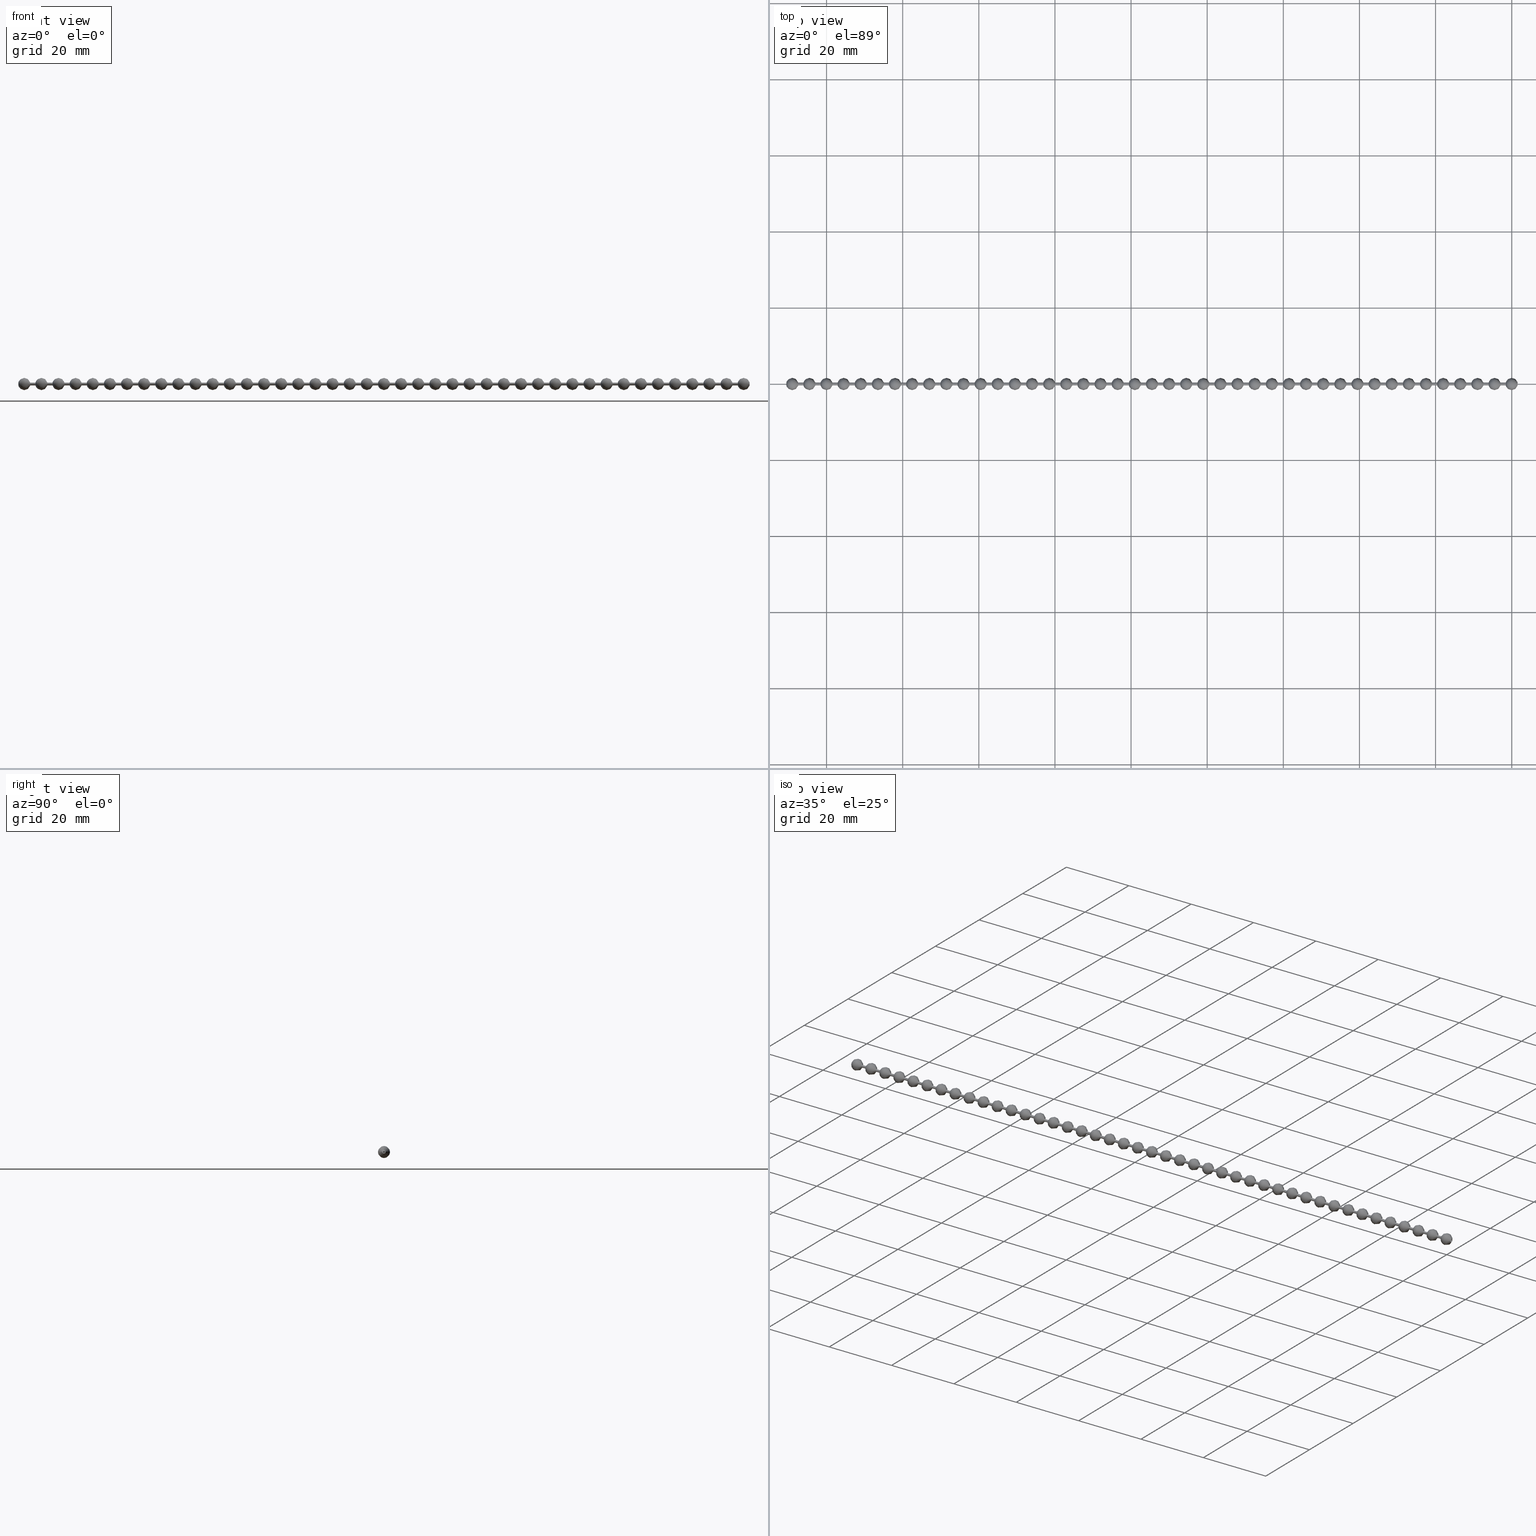
[diagram: canonical four-view strip — front | top / right | iso, engineering-drawing reading convention]
A machine part, canonical four-view strip (front | top / right | iso — engineering-drawing reading convention). The complete STEP part file that produces these views, byte-faithful:
ISO-10303-21;
HEADER;
/****************************************************************
 * Generated by software with PDE/Lib inside                    *
 * PDElib Version 4.4.1-0003, patched  Thursday August 19 11:58 *
 * International Technegroup Inc. (www.iti-oh.com)              *
 ****************************************************************/
FILE_DESCRIPTION((''),'2;1');
FILE_NAME('','2005-12-14T14:31:43',(''),(''),'','CADfix','');
FILE_SCHEMA(('AUTOMOTIVE_DESIGN'));
ENDSEC;
DATA;
#5=APPLICATION_CONTEXT('automotive design');
#6=APPLICATION_PROTOCOL_DEFINITION('Draft International Standard','automotive_design',1998,#5);
#7=PRODUCT_CONTEXT('None',#5,'mechanical');
#8=PRODUCT('chain','','None',(#7));
#9=PRODUCT_RELATED_PRODUCT_CATEGORY('part','description',(#8));
#10=PRODUCT_DEFINITION_FORMATION('None','None',#8);
#11=PRODUCT_DEFINITION_CONTEXT('part definition',#5,'design');
#12=PRODUCT_DEFINITION('None','None',#10,#11);
#18=(NAMED_UNIT(*)PLANE_ANGLE_UNIT()SI_UNIT($,.RADIAN.));
#19=DIMENSIONAL_EXPONENTS(0.0,0.0,0.0,0.0,0.0,0.0,0.0);
#20=PLANE_ANGLE_MEASURE_WITH_UNIT(PLANE_ANGLE_MEASURE(0.017453292500000),#18);
#24=(CONVERSION_BASED_UNIT('DEGREE',#20)NAMED_UNIT(#19)PLANE_ANGLE_UNIT());
#28=(NAMED_UNIT(*)SI_UNIT($,.STERADIAN.)SOLID_ANGLE_UNIT());
#32=(LENGTH_UNIT()NAMED_UNIT(*)SI_UNIT(.MILLI.,.METRE.));
#34=UNCERTAINTY_MEASURE_WITH_UNIT(LENGTH_MEASURE(0.001000000000000),#32,'DISTANCE_ACCURACY_VALUE','');
#36=(GEOMETRIC_REPRESENTATION_CONTEXT(3)GLOBAL_UNCERTAINTY_ASSIGNED_CONTEXT((#34))GLOBAL_UNIT_ASSIGNED_CONTEXT((#24,#28,#32))REPRESENTATION_CONTEXT('None','None'));
#37=AXIS2_PLACEMENT_3D('',#38,#39,#40);
#38=CARTESIAN_POINT('',(0.0,0.0,0.0));
#39=DIRECTION('',(0.0,0.0,1.0));
#40=DIRECTION('',(1.0,0.0,0.0));
#41=ADVANCED_BREP_SHAPE_REPRESENTATION('',(#37,#288,#579,#595,#611,#627,#643,#659,#675,#691,#707,#723,#739,#755,#771,#787,#803,#819,#835,#851,#867,#883,#899,#915,#931,#947,#963,#979,#995,#1011,#1027,#1043,#1059,#1075,#1091,#1107,#1123,#1139,#1155,#1171,#1187,#1203,#1219,#1235,#1267),#36);
#42=PRODUCT_DEFINITION_SHAPE('','',#12);
#43=SHAPE_DEFINITION_REPRESENTATION(#42,#41);
#44=CARTESIAN_POINT('',(1.626653005407113,0.397203810545467,0.047213693862703));
#45=CARTESIAN_POINT('',(1.626653005407114,0.398555046179442,0.035845891455191));
#46=CARTESIAN_POINT('',(1.626653005407114,0.399253919368747,0.024419415813943));
#47=CARTESIAN_POINT('',(1.626653005407114,0.423673335182689,-0.374834503554804));
#48=CARTESIAN_POINT('',(1.626653005407114,0.024419415813943,-0.399253919368747));
#49=CARTESIAN_POINT('',(1.626653005407114,-0.374834503554804,-0.423673335182689));
#50=CARTESIAN_POINT('',(1.626653005407114,-0.399253919368747,-0.024419415813943));
#51=CARTESIAN_POINT('',(-1.628589497080217,0.397203810545467,0.047213693862703));
#52=CARTESIAN_POINT('',(-1.628589497080217,0.398555046179442,0.035845891455191));
#53=CARTESIAN_POINT('',(-1.628589497080217,0.399253919368747,0.024419415813943));
#54=CARTESIAN_POINT('',(-1.628589497080216,0.423673335182689,-0.374834503554804));
#55=CARTESIAN_POINT('',(-1.628589497080217,0.024419415813943,-0.399253919368747));
#56=CARTESIAN_POINT('',(-1.628589497080216,-0.374834503554804,-0.423673335182689));
#57=CARTESIAN_POINT('',(-1.628589497080217,-0.399253919368747,-0.024419415813943));
#65=(BOUNDED_SURFACE()B_SPLINE_SURFACE(2,1,((#44,#51),(#45,#52),(#46,#53),(#47,#54),(#48,#55),(#49,#56),(#50,#57)),.UNSPECIFIED.,.F.,.F.,.U.)B_SPLINE_SURFACE_WITH_KNOTS((3,2,2,3),(2,2),(0.0,0.026509667991878,0.689251367788830,1.351993067585782),(0.0,3.255242502487331),.UNSPECIFIED.)GEOMETRIC_REPRESENTATION_ITEM()RATIONAL_B_SPLINE_SURFACE(((0.977505800795127,0.977505800795127),(0.988284271247462,0.988284271247462),(1.0,1.0),(0.707106781186548,0.707106781186548),(1.0,1.0),(0.707106781186548,0.707106781186548),(1.0,1.0)))REPRESENTATION_ITEM('')SURFACE());
#66=CARTESIAN_POINT('',(1.549193338482965,0.397203809868136,0.047213699561011));
#67=VERTEX_POINT('',#66);
#68=CARTESIAN_POINT('',(1.549193338482965,0.0,-0.400000000000000));
#69=VERTEX_POINT('',#68);
#70=CARTESIAN_POINT('',(1.549193338482965,0.397203809868136,0.047213699561011));
#71=CARTESIAN_POINT('',(1.549193338482964,0.400000000000000,0.023689653619313));
#72=CARTESIAN_POINT('',(1.549193338482965,0.400000000000000,0.0));
#73=CARTESIAN_POINT('',(1.549193338482965,0.400000000000000,-0.400000000000000));
#74=CARTESIAN_POINT('',(1.549193338482965,0.0,-0.400000000000000));
#82=(BOUNDED_CURVE()B_SPLINE_CURVE(2,(#70,#71,#72,#73,#74),.UNSPECIFIED.,.F.,.U.)B_SPLINE_CURVE_WITH_KNOTS((3,2,3),(0.229562468666585,0.250000000000000,0.500000000000000),.UNSPECIFIED.)CURVE()GEOMETRIC_REPRESENTATION_ITEM()RATIONAL_B_SPLINE_CURVE((0.956026744683531,0.976055942652621,1.0,0.707106781186548,1.0))REPRESENTATION_ITEM(''));
#83=EDGE_CURVE('',#67,#69,#82,.T.);
#84=ORIENTED_EDGE('',*,*,#83,.F.);
#85=CARTESIAN_POINT('',(-1.549193338482965,0.397203809868134,0.047213699561028));
#86=VERTEX_POINT('',#85);
#87=CARTESIAN_POINT('',(1.549193338482965,0.397203809868136,0.047213699561011));
#88=CARTESIAN_POINT('',(-1.549193338482965,0.397203809868134,0.047213699561028));
#89=QUASI_UNIFORM_CURVE('',1,(#87,#88),.UNSPECIFIED.,.F.,.U.);
#90=EDGE_CURVE('',#67,#86,#89,.T.);
#91=ORIENTED_EDGE('',*,*,#90,.T.);
#92=CARTESIAN_POINT('',(-1.549193338482965,0.0,-0.400000000000000));
#93=VERTEX_POINT('',#92);
#94=CARTESIAN_POINT('',(-1.549193338482965,0.397203809868134,0.047213699561028));
#95=CARTESIAN_POINT('',(-1.549193338482965,0.400000000000000,0.023689653619330));
#96=CARTESIAN_POINT('',(-1.549193338482965,0.400000000000000,0.0));
#97=CARTESIAN_POINT('',(-1.549193338482965,0.400000000000000,-0.400000000000000));
#98=CARTESIAN_POINT('',(-1.549193338482965,0.0,-0.400000000000000));
#106=(BOUNDED_CURVE()B_SPLINE_CURVE(2,(#94,#95,#96,#97,#98),.UNSPECIFIED.,.F.,.U.)B_SPLINE_CURVE_WITH_KNOTS((3,2,3),(0.229562468666570,0.250000000000000,0.500000000000000),.UNSPECIFIED.)CURVE()GEOMETRIC_REPRESENTATION_ITEM()RATIONAL_B_SPLINE_CURVE((0.956026744683503,0.976055942652604,1.0,0.707106781186548,1.0))REPRESENTATION_ITEM(''));
#107=EDGE_CURVE('',#86,#93,#106,.T.);
#108=ORIENTED_EDGE('',*,*,#107,.T.);
#109=CARTESIAN_POINT('',(-1.549193338482965,-0.399253919232480,-0.024419418041886));
#110=VERTEX_POINT('',#109);
#111=CARTESIAN_POINT('',(-1.549193338482965,0.0,-0.400000000000000));
#112=CARTESIAN_POINT('',(-1.549193338482965,-0.376282422554918,-0.400000000000000));
#113=CARTESIAN_POINT('',(-1.549193338482965,-0.399253919232480,-0.024419418041886));
#121=(BOUNDED_CURVE()B_SPLINE_CURVE(2,(#111,#112,#113),.UNSPECIFIED.,.F.,.U.)B_SPLINE_CURVE_WITH_KNOTS((3,3),(0.500000000000000,0.739332960316254),.UNSPECIFIED.)CURVE()GEOMETRIC_REPRESENTATION_ITEM()RATIONAL_B_SPLINE_CURVE((1.0,0.719603995539280,0.976072037546030))REPRESENTATION_ITEM(''));
#122=EDGE_CURVE('',#93,#110,#121,.T.);
#123=ORIENTED_EDGE('',*,*,#122,.T.);
#124=CARTESIAN_POINT('',(1.549193338482965,-0.399253919232480,-0.024419418041882));
#125=VERTEX_POINT('',#124);
#126=CARTESIAN_POINT('',(1.549193338482965,-0.399253919232480,-0.024419418041882));
#127=CARTESIAN_POINT('',(-1.549193338482965,-0.399253919232480,-0.024419418041886));
#128=QUASI_UNIFORM_CURVE('',1,(#126,#127),.UNSPECIFIED.,.F.,.U.);
#129=EDGE_CURVE('',#125,#110,#128,.T.);
#130=ORIENTED_EDGE('',*,*,#129,.F.);
#131=CARTESIAN_POINT('',(1.549193338482965,0.0,-0.400000000000000));
#132=CARTESIAN_POINT('',(1.549193338482965,-0.376282422554928,-0.400000000000000));
#133=CARTESIAN_POINT('',(1.549193338482965,-0.399253919232480,-0.024419418041882));
#141=(BOUNDED_CURVE()B_SPLINE_CURVE(2,(#131,#132,#133),.UNSPECIFIED.,.F.,.U.)B_SPLINE_CURVE_WITH_KNOTS((3,3),(0.500000000000000,0.739332960316259),.UNSPECIFIED.)CURVE()GEOMETRIC_REPRESENTATION_ITEM()RATIONAL_B_SPLINE_CURVE((1.0,0.719603995539275,0.976072037546039))REPRESENTATION_ITEM(''));
#142=EDGE_CURVE('',#69,#125,#141,.T.);
#143=ORIENTED_EDGE('',*,*,#142,.F.);
#144=EDGE_LOOP('',(#84,#91,#108,#123,#130,#143));
#145=FACE_OUTER_BOUND('',#144,.T.);
#146=ADVANCED_FACE('',(#145),#65,.F.);
#147=CARTESIAN_POINT('',(1.626653005407114,-0.399253919368747,-0.024419415813943));
#148=CARTESIAN_POINT('',(1.626653005407114,-0.423673335182689,0.374834503554804));
#149=CARTESIAN_POINT('',(1.626653005407114,-0.024419415813943,0.399253919368747));
#150=CARTESIAN_POINT('',(1.626653005407114,0.352617396335800,0.422314478693011));
#151=CARTESIAN_POINT('',(1.626653005407113,0.397203810545467,0.047213693862703));
#152=CARTESIAN_POINT('',(-1.628589497080217,-0.399253919368747,-0.024419415813943));
#153=CARTESIAN_POINT('',(-1.628589497080216,-0.423673335182689,0.374834503554804));
#154=CARTESIAN_POINT('',(-1.628589497080217,-0.024419415813943,0.399253919368747));
#155=CARTESIAN_POINT('',(-1.628589497080217,0.352617396335800,0.422314478693011));
#156=CARTESIAN_POINT('',(-1.628589497080217,0.397203810545467,0.047213693862703));
#164=(BOUNDED_SURFACE()B_SPLINE_SURFACE(2,1,((#147,#152),(#148,#153),(#149,#154),(#150,#155),(#151,#156)),.UNSPECIFIED.,.F.,.F.,.U.)B_SPLINE_SURFACE_WITH_KNOTS((3,2,3),(2,2),(0.0,0.662741699796952,1.298973731602026),(0.0,3.255242502487331),.UNSPECIFIED.)GEOMETRIC_REPRESENTATION_ITEM()RATIONAL_B_SPLINE_SURFACE(((1.0,1.0),(0.707106781186548,0.707106781186548),(1.0,1.0),(0.718822509939086,0.718822509939086),(0.977505800795127,0.977505800795127)))REPRESENTATION_ITEM('')SURFACE());
#165=CARTESIAN_POINT('',(1.549193338482965,0.0,0.400000000000000));
#166=VERTEX_POINT('',#165);
#167=CARTESIAN_POINT('',(1.549193338482965,0.0,0.400000000000000));
#168=CARTESIAN_POINT('',(1.549193338482965,0.355269800115349,0.400000000000000));
#169=CARTESIAN_POINT('',(1.549193338482965,0.397203809868136,0.047213699561011));
#177=(BOUNDED_CURVE()B_SPLINE_CURVE(2,(#167,#168,#169),.UNSPECIFIED.,.F.,.U.)B_SPLINE_CURVE_WITH_KNOTS((3,3),(0.0,0.229562468666585),.UNSPECIFIED.)CURVE()GEOMETRIC_REPRESENTATION_ITEM()RATIONAL_B_SPLINE_CURVE((1.0,0.731050838533927,0.956026744683531))REPRESENTATION_ITEM(''));
#178=EDGE_CURVE('',#166,#67,#177,.T.);
#179=ORIENTED_EDGE('',*,*,#178,.F.);
#180=CARTESIAN_POINT('',(1.549193338482965,-0.399253919232480,-0.024419418041882));
#181=CARTESIAN_POINT('',(1.549193338482965,-0.400000000000000,-0.012221107553621));
#182=CARTESIAN_POINT('',(1.549193338482965,-0.400000000000000,0.0));
#183=CARTESIAN_POINT('',(1.549193338482965,-0.400000000000000,0.400000000000000));
#184=CARTESIAN_POINT('',(1.549193338482965,0.0,0.400000000000000));
#192=(BOUNDED_CURVE()B_SPLINE_CURVE(2,(#180,#181,#182,#183,#184),.UNSPECIFIED.,.F.,.U.)B_SPLINE_CURVE_WITH_KNOTS((3,2,3),(0.739332960316258,0.750000000000000,1.0),.UNSPECIFIED.)CURVE()GEOMETRIC_REPRESENTATION_ITEM()RATIONAL_B_SPLINE_CURVE((0.976072037546038,0.987502785647272,1.0,0.707106781186548,1.0))REPRESENTATION_ITEM(''));
#193=EDGE_CURVE('',#125,#166,#192,.T.);
#194=ORIENTED_EDGE('',*,*,#193,.F.);
#195=ORIENTED_EDGE('',*,*,#129,.T.);
#196=CARTESIAN_POINT('',(-1.549193338482965,0.0,0.400000000000000));
#197=VERTEX_POINT('',#196);
#198=CARTESIAN_POINT('',(-1.549193338482965,-0.399253919232480,-0.024419418041886));
#199=CARTESIAN_POINT('',(-1.549193338482965,-0.400000000000000,-0.012221107553626));
#200=CARTESIAN_POINT('',(-1.549193338482965,-0.400000000000000,0.0));
#201=CARTESIAN_POINT('',(-1.549193338482965,-0.400000000000000,0.400000000000000));
#202=CARTESIAN_POINT('',(-1.549193338482965,0.0,0.400000000000000));
#210=(BOUNDED_CURVE()B_SPLINE_CURVE(2,(#198,#199,#200,#201,#202),.UNSPECIFIED.,.F.,.U.)B_SPLINE_CURVE_WITH_KNOTS((3,2,3),(0.739332960316254,0.750000000000000,1.0),.UNSPECIFIED.)CURVE()GEOMETRIC_REPRESENTATION_ITEM()RATIONAL_B_SPLINE_CURVE((0.976072037546030,0.987502785647268,1.0,0.707106781186548,1.0))REPRESENTATION_ITEM(''));
#211=EDGE_CURVE('',#110,#197,#210,.T.);
#212=ORIENTED_EDGE('',*,*,#211,.T.);
#213=CARTESIAN_POINT('',(-1.549193338482965,0.0,0.400000000000000));
#214=CARTESIAN_POINT('',(-1.549193338482965,0.355269800115318,0.400000000000000));
#215=CARTESIAN_POINT('',(-1.549193338482965,0.397203809868134,0.047213699561028));
#223=(BOUNDED_CURVE()B_SPLINE_CURVE(2,(#213,#214,#215),.UNSPECIFIED.,.F.,.U.)B_SPLINE_CURVE_WITH_KNOTS((3,3),(0.0,0.229562468666570),.UNSPECIFIED.)CURVE()GEOMETRIC_REPRESENTATION_ITEM()RATIONAL_B_SPLINE_CURVE((1.0,0.731050838533944,0.956026744683503))REPRESENTATION_ITEM(''));
#224=EDGE_CURVE('',#197,#86,#223,.T.);
#225=ORIENTED_EDGE('',*,*,#224,.T.);
#226=ORIENTED_EDGE('',*,*,#90,.F.);
#227=EDGE_LOOP('',(#179,#194,#195,#212,#225,#226));
#228=FACE_OUTER_BOUND('',#227,.T.);
#229=ADVANCED_FACE('',(#228),#164,.F.);
#230=CARTESIAN_POINT('',(-1.575622041736836,-0.196742447876716,-0.196742447876715));
#231=CARTESIAN_POINT('',(-1.567578386143844,-0.196244111339671,-0.261658815119561));
#232=CARTESIAN_POINT('',(-1.551612703317111,-0.097627486813707,-0.390509947254828));
#233=CARTESIAN_POINT('',(-1.551612703317111,0.097627486813707,-0.390509947254828));
#234=CARTESIAN_POINT('',(-1.567578386143844,0.196244111339671,-0.261658815119561));
#235=CARTESIAN_POINT('',(-1.575622041736836,0.196742447876715,-0.196742447876715));
#236=CARTESIAN_POINT('',(-1.567578386143844,-0.261658815119561,-0.196244111339671));
#237=CARTESIAN_POINT('',(-1.551612703317109,-0.292882460441122,-0.292882460441121));
#238=CARTESIAN_POINT('',(-1.504666940704169,-0.192346496443254,-0.577039489329761));
#239=CARTESIAN_POINT('',(-1.504666940704169,0.192346496443253,-0.577039489329761));
#240=CARTESIAN_POINT('',(-1.551612703317111,0.292882460441121,-0.292882460441121));
#241=CARTESIAN_POINT('',(-1.567578386143844,0.261658815119561,-0.196244111339671));
#242=CARTESIAN_POINT('',(-1.551612703317109,-0.390509947254829,-0.097627486813707));
#243=CARTESIAN_POINT('',(-1.504666940704169,-0.577039489329761,-0.192346496443254));
#244=CARTESIAN_POINT('',(1.600000000000000,-6.456404453657646,-6.456404453657646));
#245=CARTESIAN_POINT('',(1.599999999999999,6.456404453657646,-6.456404453657646));
#246=CARTESIAN_POINT('',(-1.504666940704169,0.577039489329761,-0.192346496443254));
#247=CARTESIAN_POINT('',(-1.551612703317111,0.390509947254828,-0.097627486813707));
#248=CARTESIAN_POINT('',(-1.551612703317109,-0.390509947254829,0.097627486813707));
#249=CARTESIAN_POINT('',(-1.504666940704169,-0.577039489329761,0.192346496443254));
#250=CARTESIAN_POINT('',(1.600000000000000,-6.456404453657646,6.456404453657646));
#251=CARTESIAN_POINT('',(1.599999999999999,6.456404453657646,6.456404453657646));
#252=CARTESIAN_POINT('',(-1.504666940704169,0.577039489329761,0.192346496443254));
#253=CARTESIAN_POINT('',(-1.551612703317111,0.390509947254828,0.097627486813707));
#254=CARTESIAN_POINT('',(-1.567578386143844,-0.261658815119561,0.196244111339671));
#255=CARTESIAN_POINT('',(-1.551612703317109,-0.292882460441122,0.292882460441121));
#256=CARTESIAN_POINT('',(-1.504666940704169,-0.192346496443254,0.577039489329761));
#257=CARTESIAN_POINT('',(-1.504666940704169,0.192346496443253,0.577039489329761));
#258=CARTESIAN_POINT('',(-1.551612703317111,0.292882460441121,0.292882460441121));
#259=CARTESIAN_POINT('',(-1.567578386143844,0.261658815119561,0.196244111339671));
#260=CARTESIAN_POINT('',(-1.575622041736836,-0.196742447876716,0.196742447876716));
#261=CARTESIAN_POINT('',(-1.567578386143844,-0.196244111339671,0.261658815119561));
#262=CARTESIAN_POINT('',(-1.551612703317109,-0.097627486813707,0.390509947254828));
#263=CARTESIAN_POINT('',(-1.551612703317109,0.097627486813707,0.390509947254828));
#264=CARTESIAN_POINT('',(-1.567578386143844,0.196244111339671,0.261658815119561));
#265=CARTESIAN_POINT('',(-1.575622041736836,0.196742447876715,0.196742447876716));
#273=(BOUNDED_SURFACE()B_SPLINE_SURFACE(2,2,((#230,#236,#242,#248,#254,#260),(#231,#237,#243,#249,#255,#261),(#232,#238,#244,#250,#256,#262),(#233,#239,#245,#251,#257,#263),(#234,#240,#246,#252,#258,#264),(#235,#241,#247,#253,#259,#265)),.UNSPECIFIED.,.F.,.F.,.U.)GEOMETRIC_REPRESENTATION_ITEM()QUASI_UNIFORM_SURFACE()RATIONAL_B_SPLINE_SURFACE(((131.266120216282190,98.699590162211663,66.133060108141109,66.133060108141109,98.699590162211663,131.266120216282190),(98.699590162211663,66.133060108141109,33.566530054070547,33.566530054070547,66.133060108141109,98.699590162211663),(66.133060108141109,33.566530054070547,1.0,1.0,33.566530054070547,66.133060108141109),(66.133060108141109,33.566530054070547,1.0,1.0,33.566530054070547,66.133060108141109),(98.699590162211663,66.133060108141109,33.566530054070547,33.566530054070547,66.133060108141109,98.699590162211663),(131.266120216282190,98.699590162211663,66.133060108141109,66.133060108141109,98.699590162211663,131.266120216282190)))REPRESENTATION_ITEM('')SURFACE());
#274=ORIENTED_EDGE('',*,*,#122,.F.);
#275=ORIENTED_EDGE('',*,*,#107,.F.);
#276=ORIENTED_EDGE('',*,*,#224,.F.);
#277=ORIENTED_EDGE('',*,*,#211,.F.);
#278=EDGE_LOOP('',(#274,#275,#276,#277));
#279=FACE_OUTER_BOUND('',#278,.T.);
#280=ORIENTED_EDGE('',*,*,#142,.T.);
#281=ORIENTED_EDGE('',*,*,#193,.T.);
#282=ORIENTED_EDGE('',*,*,#178,.T.);
#283=ORIENTED_EDGE('',*,*,#83,.T.);
#284=EDGE_LOOP('',(#280,#281,#282,#283));
#285=FACE_BOUND('',#284,.T.);
#286=ADVANCED_FACE('',(#279,#285),#273,.T.);
#287=CLOSED_SHELL('',(#146,#229,#286));
#288=MANIFOLD_SOLID_BREP('chain',#287);
#289=APPLICATION_CONTEXT('automotive design');
#290=APPLICATION_PROTOCOL_DEFINITION('Draft International Standard','automotive_design',1998,#289);
#291=PRODUCT_CONTEXT('None',#289,'mechanical');
#292=PRODUCT('joint','','None',(#291));
#293=PRODUCT_RELATED_PRODUCT_CATEGORY('part','description',(#292));
#294=PRODUCT_DEFINITION_FORMATION('None','None',#292);
#295=PRODUCT_DEFINITION_CONTEXT('part definition',#289,'design');
#296=PRODUCT_DEFINITION('None','None',#294,#295);
#302=(NAMED_UNIT(*)PLANE_ANGLE_UNIT()SI_UNIT($,.RADIAN.));
#303=DIMENSIONAL_EXPONENTS(0.0,0.0,0.0,0.0,0.0,0.0,0.0);
#304=PLANE_ANGLE_MEASURE_WITH_UNIT(PLANE_ANGLE_MEASURE(0.017453292500000),#302);
#308=(CONVERSION_BASED_UNIT('DEGREE',#304)NAMED_UNIT(#303)PLANE_ANGLE_UNIT());
#312=(NAMED_UNIT(*)SI_UNIT($,.STERADIAN.)SOLID_ANGLE_UNIT());
#316=(LENGTH_UNIT()NAMED_UNIT(*)SI_UNIT(.MILLI.,.METRE.));
#318=UNCERTAINTY_MEASURE_WITH_UNIT(LENGTH_MEASURE(0.001000000000000),#316,'DISTANCE_ACCURACY_VALUE','');
#320=(GEOMETRIC_REPRESENTATION_CONTEXT(3)GLOBAL_UNCERTAINTY_ASSIGNED_CONTEXT((#318))GLOBAL_UNIT_ASSIGNED_CONTEXT((#308,#312,#316))REPRESENTATION_CONTEXT('None','None'));
#321=AXIS2_PLACEMENT_3D('',#322,#323,#324);
#322=CARTESIAN_POINT('',(0.0,0.0,0.0));
#323=DIRECTION('',(0.0,0.0,1.0));
#324=DIRECTION('',(1.0,0.0,0.0));
#325=ADVANCED_BREP_SHAPE_REPRESENTATION('',(#321,#539,#1251),#320);
#326=PRODUCT_DEFINITION_SHAPE('','',#296);
#327=SHAPE_DEFINITION_REPRESENTATION(#326,#325);
#328=CARTESIAN_POINT('',(4.725000000000006,0.347553334227292,0.041311982129866));
#329=CARTESIAN_POINT('',(4.725000000000006,0.348735665407021,0.031365155023293));
#330=CARTESIAN_POINT('',(4.725000000000005,0.349347179447662,0.021366988837200));
#331=CARTESIAN_POINT('',(4.725000000000006,0.370714168284862,-0.327980190610461));
#332=CARTESIAN_POINT('',(4.725000000000005,0.021366988837200,-0.349347179447662));
#333=CARTESIAN_POINT('',(4.725000000000006,-0.327980190610461,-0.370714168284862));
#334=CARTESIAN_POINT('',(4.725000000000005,-0.349347179447662,-0.021366988837200));
#335=CARTESIAN_POINT('',(-193.843125000000070,0.347553334227292,0.041311982129866));
#336=CARTESIAN_POINT('',(-193.843125000000040,0.348735665407021,0.031365155023293));
#337=CARTESIAN_POINT('',(-193.843124999999990,0.349347179447662,0.021366988837200));
#338=CARTESIAN_POINT('',(-193.843125000000040,0.370714168284862,-0.327980190610461));
#339=CARTESIAN_POINT('',(-193.843124999999990,0.021366988837200,-0.349347179447662));
#340=CARTESIAN_POINT('',(-193.843125000000040,-0.327980190610461,-0.370714168284862));
#341=CARTESIAN_POINT('',(-193.843124999999990,-0.349347179447662,-0.021366988837200));
#349=(BOUNDED_SURFACE()B_SPLINE_SURFACE(2,1,((#328,#335),(#329,#336),(#330,#337),(#331,#338),(#332,#339),(#333,#340),(#334,#341)),.UNSPECIFIED.,.F.,.F.,.U.)B_SPLINE_SURFACE_WITH_KNOTS((3,2,2,3),(2,2),(0.0,0.023195959492894,0.603094946815241,1.182993934137588),(0.0,198.568125000000090),.UNSPECIFIED.)GEOMETRIC_REPRESENTATION_ITEM()RATIONAL_B_SPLINE_SURFACE(((0.977505800795127,0.977505800795127),(0.988284271247462,0.988284271247462),(1.0,1.0),(0.707106781186548,0.707106781186548),(1.0,1.0),(0.707106781186548,0.707106781186548),(1.0,1.0)))REPRESENTATION_ITEM('')SURFACE());
#350=CARTESIAN_POINT('',(6.360319E-015,0.347553333314068,0.041311989812720));
#351=VERTEX_POINT('',#350);
#352=CARTESIAN_POINT('',(0.0,0.0,-0.350000000000009));
#353=VERTEX_POINT('',#352);
#354=CARTESIAN_POINT('',(6.360319E-015,0.347553333314068,0.041311989812720));
#355=CARTESIAN_POINT('',(0.0,0.350000000000009,0.020728449642245));
#356=CARTESIAN_POINT('',(0.0,0.350000000000009,0.0));
#357=CARTESIAN_POINT('',(0.0,0.350000000000008,-0.350000000000008));
#358=CARTESIAN_POINT('',(0.0,0.0,-0.350000000000009));
#366=(BOUNDED_CURVE()B_SPLINE_CURVE(2,(#354,#355,#356,#357,#358),.UNSPECIFIED.,.F.,.U.)B_SPLINE_CURVE_WITH_KNOTS((3,2,3),(0.229562466043828,0.250000000000000,0.500000000000000),.UNSPECIFIED.)CURVE()GEOMETRIC_REPRESENTATION_ITEM()RATIONAL_B_SPLINE_CURVE((0.956026739542821,0.976055939579871,1.0,0.707106781186547,1.0))REPRESENTATION_ITEM(''));
#367=EDGE_CURVE('',#351,#353,#366,.T.);
#368=ORIENTED_EDGE('',*,*,#367,.T.);
#369=CARTESIAN_POINT('',(6.661338E-015,-0.349347179157210,-0.021366993586052));
#370=VERTEX_POINT('',#369);
#371=CARTESIAN_POINT('',(0.0,0.0,-0.350000000000009));
#372=CARTESIAN_POINT('',(0.0,-0.329247114449030,-0.350000000000009));
#373=CARTESIAN_POINT('',(6.661338E-015,-0.349347179157210,-0.021366993586052));
#381=(BOUNDED_CURVE()B_SPLINE_CURVE(2,(#371,#372,#373),.UNSPECIFIED.,.F.,.U.)B_SPLINE_CURVE_WITH_KNOTS((3,3),(0.500000000000000,0.739332957550937),.UNSPECIFIED.)CURVE()GEOMETRIC_REPRESENTATION_ITEM()RATIONAL_B_SPLINE_CURVE((1.0,0.719603998779050,0.976072031619430))REPRESENTATION_ITEM(''));
#382=EDGE_CURVE('',#353,#370,#381,.T.);
#383=ORIENTED_EDGE('',*,*,#382,.T.);
#384=CARTESIAN_POINT('',(-189.0,-0.349347179157209,-0.021366993586067));
#385=VERTEX_POINT('',#384);
#386=CARTESIAN_POINT('',(6.661338E-015,-0.349347179157210,-0.021366993586052));
#387=CARTESIAN_POINT('',(-189.0,-0.349347179157209,-0.021366993586067));
#388=QUASI_UNIFORM_CURVE('',1,(#386,#387),.UNSPECIFIED.,.F.,.U.);
#389=EDGE_CURVE('',#370,#385,#388,.T.);
#390=ORIENTED_EDGE('',*,*,#389,.T.);
#391=CARTESIAN_POINT('',(-189.0,0.0,-0.350000000000009));
#392=VERTEX_POINT('',#391);
#393=CARTESIAN_POINT('',(-189.0,0.0,-0.350000000000009));
#394=CARTESIAN_POINT('',(-189.000000000000060,-0.329247114449005,-0.350000000000009));
#395=CARTESIAN_POINT('',(-189.000000000000030,-0.349347179157209,-0.021366993586067));
#403=(BOUNDED_CURVE()B_SPLINE_CURVE(2,(#393,#394,#395),.UNSPECIFIED.,.F.,.U.)B_SPLINE_CURVE_WITH_KNOTS((3,3),(0.500000000000000,0.739332957550924),.UNSPECIFIED.)CURVE()GEOMETRIC_REPRESENTATION_ITEM()RATIONAL_B_SPLINE_CURVE((1.0,0.719603998779066,0.976072031619401))REPRESENTATION_ITEM(''));
#404=EDGE_CURVE('',#392,#385,#403,.T.);
#405=ORIENTED_EDGE('',*,*,#404,.F.);
#406=CARTESIAN_POINT('',(-189.0,0.347553333314065,0.041311989812749));
#407=VERTEX_POINT('',#406);
#408=CARTESIAN_POINT('',(-189.000000000000030,0.347553333314064,0.041311989812749));
#409=CARTESIAN_POINT('',(-189.0,0.350000000000009,0.020728449642274));
#410=CARTESIAN_POINT('',(-189.0,0.350000000000009,0.0));
#411=CARTESIAN_POINT('',(-189.000000000000060,0.350000000000008,-0.350000000000008));
#412=CARTESIAN_POINT('',(-189.0,0.0,-0.350000000000009));
#420=(BOUNDED_CURVE()B_SPLINE_CURVE(2,(#408,#409,#410,#411,#412),.UNSPECIFIED.,.F.,.U.)B_SPLINE_CURVE_WITH_KNOTS((3,2,3),(0.229562466043801,0.250000000000000,0.500000000000000),.UNSPECIFIED.)CURVE()GEOMETRIC_REPRESENTATION_ITEM()RATIONAL_B_SPLINE_CURVE((0.956026739542767,0.976055939579838,1.0,0.707106781186547,1.0))REPRESENTATION_ITEM(''));
#421=EDGE_CURVE('',#407,#392,#420,.T.);
#422=ORIENTED_EDGE('',*,*,#421,.F.);
#423=CARTESIAN_POINT('',(6.360319E-015,0.347553333314068,0.041311989812720));
#424=CARTESIAN_POINT('',(-189.0,0.347553333314065,0.041311989812749));
#425=QUASI_UNIFORM_CURVE('',1,(#423,#424),.UNSPECIFIED.,.F.,.U.);
#426=EDGE_CURVE('',#351,#407,#425,.T.);
#427=ORIENTED_EDGE('',*,*,#426,.F.);
#428=EDGE_LOOP('',(#368,#383,#390,#405,#422,#427));
#429=FACE_OUTER_BOUND('',#428,.T.);
#430=ADVANCED_FACE('',(#429),#349,.T.);
#431=CARTESIAN_POINT('',(4.725000000000005,-0.349347179447662,-0.021366988837200));
#432=CARTESIAN_POINT('',(4.725000000000006,-0.370714168284862,0.327980190610461));
#433=CARTESIAN_POINT('',(4.725000000000005,-0.021366988837200,0.349347179447662));
#434=CARTESIAN_POINT('',(4.725000000000006,0.308540221793833,0.369525168856394));
#435=CARTESIAN_POINT('',(4.725000000000006,0.347553334227292,0.041311982129866));
#436=CARTESIAN_POINT('',(-193.843124999999990,-0.349347179447662,-0.021366988837200));
#437=CARTESIAN_POINT('',(-193.843125000000040,-0.370714168284862,0.327980190610461));
#438=CARTESIAN_POINT('',(-193.843124999999990,-0.021366988837200,0.349347179447662));
#439=CARTESIAN_POINT('',(-193.843124999999960,0.308540221793833,0.369525168856394));
#440=CARTESIAN_POINT('',(-193.843125000000070,0.347553334227292,0.041311982129866));
#448=(BOUNDED_SURFACE()B_SPLINE_SURFACE(2,1,((#431,#436),(#432,#437),(#433,#438),(#434,#439),(#435,#440)),.UNSPECIFIED.,.F.,.F.,.U.)B_SPLINE_SURFACE_WITH_KNOTS((3,2,3),(2,2),(0.0,0.579898987322347,1.136602015151800),(0.0,198.568125000000090),.UNSPECIFIED.)GEOMETRIC_REPRESENTATION_ITEM()RATIONAL_B_SPLINE_SURFACE(((1.0,1.0),(0.707106781186548,0.707106781186548),(1.0,1.0),(0.718822509939086,0.718822509939086),(0.977505800795127,0.977505800795127)))REPRESENTATION_ITEM('')SURFACE());
#449=CARTESIAN_POINT('',(0.0,0.0,0.350000000000009));
#450=VERTEX_POINT('',#449);
#451=CARTESIAN_POINT('',(0.0,0.0,0.350000000000009));
#452=CARTESIAN_POINT('',(0.0,0.310861070242733,0.350000000000009));
#453=CARTESIAN_POINT('',(6.360319E-015,0.347553333314068,0.041311989812720));
#461=(BOUNDED_CURVE()B_SPLINE_CURVE(2,(#451,#452,#453),.UNSPECIFIED.,.F.,.U.)B_SPLINE_CURVE_WITH_KNOTS((3,3),(0.0,0.229562466043828),.UNSPECIFIED.)CURVE()GEOMETRIC_REPRESENTATION_ITEM()RATIONAL_B_SPLINE_CURVE((1.0,0.731050841606677,0.956026739542821))REPRESENTATION_ITEM(''));
#462=EDGE_CURVE('',#450,#351,#461,.T.);
#463=ORIENTED_EDGE('',*,*,#462,.T.);
#464=ORIENTED_EDGE('',*,*,#426,.T.);
#465=CARTESIAN_POINT('',(-189.0,0.0,0.350000000000009));
#466=VERTEX_POINT('',#465);
#467=CARTESIAN_POINT('',(-189.0,0.0,0.350000000000009));
#468=CARTESIAN_POINT('',(-189.000000000000060,0.310861070242681,0.350000000000009));
#469=CARTESIAN_POINT('',(-189.000000000000030,0.347553333314064,0.041311989812749));
#477=(BOUNDED_CURVE()B_SPLINE_CURVE(2,(#467,#468,#469),.UNSPECIFIED.,.F.,.U.)B_SPLINE_CURVE_WITH_KNOTS((3,3),(0.0,0.229562466043801),.UNSPECIFIED.)CURVE()GEOMETRIC_REPRESENTATION_ITEM()RATIONAL_B_SPLINE_CURVE((1.0,0.731050841606709,0.956026739542767))REPRESENTATION_ITEM(''));
#478=EDGE_CURVE('',#466,#407,#477,.T.);
#479=ORIENTED_EDGE('',*,*,#478,.F.);
#480=CARTESIAN_POINT('',(-188.999999999999970,-0.349347179157209,-0.021366993586066));
#481=CARTESIAN_POINT('',(-189.000000000000030,-0.350000000000008,-0.010693471916688));
#482=CARTESIAN_POINT('',(-189.0,-0.350000000000009,0.0));
#483=CARTESIAN_POINT('',(-189.000000000000060,-0.350000000000008,0.350000000000008));
#484=CARTESIAN_POINT('',(-189.0,0.0,0.350000000000009));
#492=(BOUNDED_CURVE()B_SPLINE_CURVE(2,(#480,#481,#482,#483,#484),.UNSPECIFIED.,.F.,.U.)B_SPLINE_CURVE_WITH_KNOTS((3,2,3),(0.739332957550924,0.750000000000000,1.0),.UNSPECIFIED.)CURVE()GEOMETRIC_REPRESENTATION_ITEM()RATIONAL_B_SPLINE_CURVE((0.976072031619401,0.987502782407481,1.0,0.707106781186547,1.0))REPRESENTATION_ITEM(''));
#493=EDGE_CURVE('',#385,#466,#492,.T.);
#494=ORIENTED_EDGE('',*,*,#493,.F.);
#495=ORIENTED_EDGE('',*,*,#389,.F.);
#496=CARTESIAN_POINT('',(6.661338E-015,-0.349347179157210,-0.021366993586052));
#497=CARTESIAN_POINT('',(0.0,-0.350000000000009,-0.010693471916673));
#498=CARTESIAN_POINT('',(0.0,-0.350000000000009,0.0));
#499=CARTESIAN_POINT('',(0.0,-0.350000000000008,0.350000000000008));
#500=CARTESIAN_POINT('',(0.0,0.0,0.350000000000009));
#508=(BOUNDED_CURVE()B_SPLINE_CURVE(2,(#496,#497,#498,#499,#500),.UNSPECIFIED.,.F.,.U.)B_SPLINE_CURVE_WITH_KNOTS((3,2,3),(0.739332957550938,0.750000000000000,1.0),.UNSPECIFIED.)CURVE()GEOMETRIC_REPRESENTATION_ITEM()RATIONAL_B_SPLINE_CURVE((0.976072031619432,0.987502782407498,1.0,0.707106781186547,1.0))REPRESENTATION_ITEM(''));
#509=EDGE_CURVE('',#370,#450,#508,.T.);
#510=ORIENTED_EDGE('',*,*,#509,.T.);
#511=EDGE_LOOP('',(#463,#464,#479,#494,#495,#510));
#512=FACE_OUTER_BOUND('',#511,.T.);
#513=ADVANCED_FACE('',(#512),#448,.T.);
#514=CARTESIAN_POINT('',(0.0,-0.384956444597984,0.384964992072174));
#515=CARTESIAN_POINT('',(0.0,-0.384956444597984,-0.384965017106125));
#516=CARTESIAN_POINT('',(0.0,0.384958578742290,0.384964992072174));
#517=CARTESIAN_POINT('',(0.0,0.384958578742290,-0.384965017106125));
#518=B_SPLINE_SURFACE_WITH_KNOTS('',1,1,((#514,#516),(#515,#517)),.UNSPECIFIED.,.F.,.F.,.U.,(2,2),(2,2),(0.041708342771232,0.958291687031090),(0.041718518335745,0.958284022312239),.UNSPECIFIED.);
#519=ORIENTED_EDGE('',*,*,#509,.F.);
#520=ORIENTED_EDGE('',*,*,#382,.F.);
#521=ORIENTED_EDGE('',*,*,#367,.F.);
#522=ORIENTED_EDGE('',*,*,#462,.F.);
#523=EDGE_LOOP('',(#519,#520,#521,#522));
#524=FACE_OUTER_BOUND('',#523,.T.);
#525=ADVANCED_FACE('',(#524),#518,.T.);
#526=CARTESIAN_POINT('',(-189.0,-0.384956444597984,-0.384964992072174));
#527=CARTESIAN_POINT('',(-189.0,-0.384956444597984,0.384965017106125));
#528=CARTESIAN_POINT('',(-189.0,0.384958578742290,-0.384964992072174));
#529=CARTESIAN_POINT('',(-189.0,0.384958578742290,0.384965017106125));
#530=B_SPLINE_SURFACE_WITH_KNOTS('',1,1,((#526,#528),(#527,#529)),.UNSPECIFIED.,.F.,.F.,.U.,(2,2),(2,2),(0.041708342771232,0.958291687031090),(0.041718518335745,0.958284022312239),.UNSPECIFIED.);
#531=ORIENTED_EDGE('',*,*,#478,.T.);
#532=ORIENTED_EDGE('',*,*,#421,.T.);
#533=ORIENTED_EDGE('',*,*,#404,.T.);
#534=ORIENTED_EDGE('',*,*,#493,.T.);
#535=EDGE_LOOP('',(#531,#532,#533,#534));
#536=FACE_OUTER_BOUND('',#535,.T.);
#537=ADVANCED_FACE('',(#536),#530,.T.);
#538=CLOSED_SHELL('',(#430,#513,#525,#537));
#539=MANIFOLD_SOLID_BREP('joint',#538);
#540=APPLICATION_CONTEXT('automotive design');
#541=APPLICATION_PROTOCOL_DEFINITION('Draft International Standard','automotive_design',1998,#540);
#542=PRODUCT_CONTEXT('None',#540,'mechanical');
#543=PRODUCT('TM_177_CHAIN_10799_36','','None',(#542));
#544=PRODUCT_RELATED_PRODUCT_CATEGORY('part','description',(#543));
#545=PRODUCT_DEFINITION_FORMATION('None','None',#543);
#546=PRODUCT_DEFINITION_CONTEXT('part definition',#540,'design');
#547=PRODUCT_DEFINITION('None','None',#545,#546);
#553=(NAMED_UNIT(*)PLANE_ANGLE_UNIT()SI_UNIT($,.RADIAN.));
#554=DIMENSIONAL_EXPONENTS(0.0,0.0,0.0,0.0,0.0,0.0,0.0);
#555=PLANE_ANGLE_MEASURE_WITH_UNIT(PLANE_ANGLE_MEASURE(0.017453292500000),#553);
#559=(CONVERSION_BASED_UNIT('DEGREE',#555)NAMED_UNIT(#554)PLANE_ANGLE_UNIT());
#563=(NAMED_UNIT(*)SI_UNIT($,.STERADIAN.)SOLID_ANGLE_UNIT());
#567=(LENGTH_UNIT()NAMED_UNIT(*)SI_UNIT(.MILLI.,.METRE.));
#569=UNCERTAINTY_MEASURE_WITH_UNIT(LENGTH_MEASURE(0.001000000000000),#567,'DISTANCE_ACCURACY_VALUE','');
#571=(GEOMETRIC_REPRESENTATION_CONTEXT(3)GLOBAL_UNCERTAINTY_ASSIGNED_CONTEXT((#569))GLOBAL_UNIT_ASSIGNED_CONTEXT((#559,#563,#567))REPRESENTATION_CONTEXT('None','None'));
#572=AXIS2_PLACEMENT_3D('',#573,#574,#575);
#573=CARTESIAN_POINT('',(0.0,0.0,0.0));
#574=DIRECTION('',(0.0,0.0,1.0));
#575=DIRECTION('',(1.0,0.0,0.0));
#576=SHAPE_REPRESENTATION('',(#572,#583,#599,#615,#631,#647,#663,#679,#695,#711,#727,#743,#759,#775,#791,#807,#823,#839,#855,#871,#887,#903,#919,#935,#951,#967,#983,#999,#1015,#1031,#1047,#1063,#1079,#1095,#1111,#1127,#1143,#1159,#1175,#1191,#1207,#1223,#1239,#1255,#1271),#571);
#577=PRODUCT_DEFINITION_SHAPE('','',#547);
#578=SHAPE_DEFINITION_REPRESENTATION(#577,#576);
#579=AXIS2_PLACEMENT_3D('',#580,#581,#582);
#580=CARTESIAN_POINT('',(0.0,0.0,0.0));
#581=DIRECTION('',(0.0,0.0,1.0));
#582=DIRECTION('',(1.0,0.0,0.0));
#583=AXIS2_PLACEMENT_3D('',#584,#585,#586);
#584=CARTESIAN_POINT('',(-189.0,0.0,0.0));
#585=DIRECTION('',(0.0,0.0,1.0));
#586=DIRECTION('',(1.0,0.0,0.0));
#587=NEXT_ASSEMBLY_USAGE_OCCURRENCE('TM_177_CHAIN_10799_36','TM_177_CHAIN_10799_36','TM_177_CHAIN_10799_36',#547,#12,'TM_177_CHAIN_10799_36');
#588=PRODUCT_DEFINITION_SHAPE('TM_177_CHAIN_10799_36','TM_177_CHAIN_10799_36',#587);
#589=ITEM_DEFINED_TRANSFORMATION('TM_177_CHAIN_10799_36','TM_177_CHAIN_10799_36',#579,#583);
#593=(REPRESENTATION_RELATIONSHIP('TM_177_CHAIN_10799_36','TM_177_CHAIN_10799_36',#41,#576)REPRESENTATION_RELATIONSHIP_WITH_TRANSFORMATION(#589)SHAPE_REPRESENTATION_RELATIONSHIP());
#594=CONTEXT_DEPENDENT_SHAPE_REPRESENTATION(#593,#588);
#595=AXIS2_PLACEMENT_3D('',#596,#597,#598);
#596=CARTESIAN_POINT('',(0.0,0.0,0.0));
#597=DIRECTION('',(0.0,0.0,1.0));
#598=DIRECTION('',(1.0,0.0,0.0));
#599=AXIS2_PLACEMENT_3D('',#600,#601,#602);
#600=CARTESIAN_POINT('',(-184.500000000000000,0.0,0.0));
#601=DIRECTION('',(0.0,0.0,1.0));
#602=DIRECTION('',(1.0,0.0,0.0));
#603=NEXT_ASSEMBLY_USAGE_OCCURRENCE('TM_177_CHAIN_10799_36','TM_177_CHAIN_10799_36','TM_177_CHAIN_10799_36',#547,#12,'TM_177_CHAIN_10799_36');
#604=PRODUCT_DEFINITION_SHAPE('TM_177_CHAIN_10799_36','TM_177_CHAIN_10799_36',#603);
#605=ITEM_DEFINED_TRANSFORMATION('TM_177_CHAIN_10799_36','TM_177_CHAIN_10799_36',#595,#599);
#609=(REPRESENTATION_RELATIONSHIP('TM_177_CHAIN_10799_36','TM_177_CHAIN_10799_36',#41,#576)REPRESENTATION_RELATIONSHIP_WITH_TRANSFORMATION(#605)SHAPE_REPRESENTATION_RELATIONSHIP());
#610=CONTEXT_DEPENDENT_SHAPE_REPRESENTATION(#609,#604);
#611=AXIS2_PLACEMENT_3D('',#612,#613,#614);
#612=CARTESIAN_POINT('',(0.0,0.0,0.0));
#613=DIRECTION('',(0.0,0.0,1.0));
#614=DIRECTION('',(1.0,0.0,0.0));
#615=AXIS2_PLACEMENT_3D('',#616,#617,#618);
#616=CARTESIAN_POINT('',(-180.0,0.0,0.0));
#617=DIRECTION('',(0.0,0.0,1.0));
#618=DIRECTION('',(1.0,0.0,0.0));
#619=NEXT_ASSEMBLY_USAGE_OCCURRENCE('TM_177_CHAIN_10799_36','TM_177_CHAIN_10799_36','TM_177_CHAIN_10799_36',#547,#12,'TM_177_CHAIN_10799_36');
#620=PRODUCT_DEFINITION_SHAPE('TM_177_CHAIN_10799_36','TM_177_CHAIN_10799_36',#619);
#621=ITEM_DEFINED_TRANSFORMATION('TM_177_CHAIN_10799_36','TM_177_CHAIN_10799_36',#611,#615);
#625=(REPRESENTATION_RELATIONSHIP('TM_177_CHAIN_10799_36','TM_177_CHAIN_10799_36',#41,#576)REPRESENTATION_RELATIONSHIP_WITH_TRANSFORMATION(#621)SHAPE_REPRESENTATION_RELATIONSHIP());
#626=CONTEXT_DEPENDENT_SHAPE_REPRESENTATION(#625,#620);
#627=AXIS2_PLACEMENT_3D('',#628,#629,#630);
#628=CARTESIAN_POINT('',(0.0,0.0,0.0));
#629=DIRECTION('',(0.0,0.0,1.0));
#630=DIRECTION('',(1.0,0.0,0.0));
#631=AXIS2_PLACEMENT_3D('',#632,#633,#634);
#632=CARTESIAN_POINT('',(-175.500000000000000,0.0,0.0));
#633=DIRECTION('',(0.0,0.0,1.0));
#634=DIRECTION('',(1.0,0.0,0.0));
#635=NEXT_ASSEMBLY_USAGE_OCCURRENCE('TM_177_CHAIN_10799_36','TM_177_CHAIN_10799_36','TM_177_CHAIN_10799_36',#547,#12,'TM_177_CHAIN_10799_36');
#636=PRODUCT_DEFINITION_SHAPE('TM_177_CHAIN_10799_36','TM_177_CHAIN_10799_36',#635);
#637=ITEM_DEFINED_TRANSFORMATION('TM_177_CHAIN_10799_36','TM_177_CHAIN_10799_36',#627,#631);
#641=(REPRESENTATION_RELATIONSHIP('TM_177_CHAIN_10799_36','TM_177_CHAIN_10799_36',#41,#576)REPRESENTATION_RELATIONSHIP_WITH_TRANSFORMATION(#637)SHAPE_REPRESENTATION_RELATIONSHIP());
#642=CONTEXT_DEPENDENT_SHAPE_REPRESENTATION(#641,#636);
#643=AXIS2_PLACEMENT_3D('',#644,#645,#646);
#644=CARTESIAN_POINT('',(0.0,0.0,0.0));
#645=DIRECTION('',(0.0,0.0,1.0));
#646=DIRECTION('',(1.0,0.0,0.0));
#647=AXIS2_PLACEMENT_3D('',#648,#649,#650);
#648=CARTESIAN_POINT('',(-171.0,0.0,0.0));
#649=DIRECTION('',(0.0,0.0,1.0));
#650=DIRECTION('',(1.0,0.0,0.0));
#651=NEXT_ASSEMBLY_USAGE_OCCURRENCE('TM_177_CHAIN_10799_36','TM_177_CHAIN_10799_36','TM_177_CHAIN_10799_36',#547,#12,'TM_177_CHAIN_10799_36');
#652=PRODUCT_DEFINITION_SHAPE('TM_177_CHAIN_10799_36','TM_177_CHAIN_10799_36',#651);
#653=ITEM_DEFINED_TRANSFORMATION('TM_177_CHAIN_10799_36','TM_177_CHAIN_10799_36',#643,#647);
#657=(REPRESENTATION_RELATIONSHIP('TM_177_CHAIN_10799_36','TM_177_CHAIN_10799_36',#41,#576)REPRESENTATION_RELATIONSHIP_WITH_TRANSFORMATION(#653)SHAPE_REPRESENTATION_RELATIONSHIP());
#658=CONTEXT_DEPENDENT_SHAPE_REPRESENTATION(#657,#652);
#659=AXIS2_PLACEMENT_3D('',#660,#661,#662);
#660=CARTESIAN_POINT('',(0.0,0.0,0.0));
#661=DIRECTION('',(0.0,0.0,1.0));
#662=DIRECTION('',(1.0,0.0,0.0));
#663=AXIS2_PLACEMENT_3D('',#664,#665,#666);
#664=CARTESIAN_POINT('',(-166.500000000000000,0.0,0.0));
#665=DIRECTION('',(0.0,0.0,1.0));
#666=DIRECTION('',(1.0,0.0,0.0));
#667=NEXT_ASSEMBLY_USAGE_OCCURRENCE('TM_177_CHAIN_10799_36','TM_177_CHAIN_10799_36','TM_177_CHAIN_10799_36',#547,#12,'TM_177_CHAIN_10799_36');
#668=PRODUCT_DEFINITION_SHAPE('TM_177_CHAIN_10799_36','TM_177_CHAIN_10799_36',#667);
#669=ITEM_DEFINED_TRANSFORMATION('TM_177_CHAIN_10799_36','TM_177_CHAIN_10799_36',#659,#663);
#673=(REPRESENTATION_RELATIONSHIP('TM_177_CHAIN_10799_36','TM_177_CHAIN_10799_36',#41,#576)REPRESENTATION_RELATIONSHIP_WITH_TRANSFORMATION(#669)SHAPE_REPRESENTATION_RELATIONSHIP());
#674=CONTEXT_DEPENDENT_SHAPE_REPRESENTATION(#673,#668);
#675=AXIS2_PLACEMENT_3D('',#676,#677,#678);
#676=CARTESIAN_POINT('',(0.0,0.0,0.0));
#677=DIRECTION('',(0.0,0.0,1.0));
#678=DIRECTION('',(1.0,0.0,0.0));
#679=AXIS2_PLACEMENT_3D('',#680,#681,#682);
#680=CARTESIAN_POINT('',(-162.0,0.0,0.0));
#681=DIRECTION('',(0.0,0.0,1.0));
#682=DIRECTION('',(1.0,0.0,0.0));
#683=NEXT_ASSEMBLY_USAGE_OCCURRENCE('TM_177_CHAIN_10799_36','TM_177_CHAIN_10799_36','TM_177_CHAIN_10799_36',#547,#12,'TM_177_CHAIN_10799_36');
#684=PRODUCT_DEFINITION_SHAPE('TM_177_CHAIN_10799_36','TM_177_CHAIN_10799_36',#683);
#685=ITEM_DEFINED_TRANSFORMATION('TM_177_CHAIN_10799_36','TM_177_CHAIN_10799_36',#675,#679);
#689=(REPRESENTATION_RELATIONSHIP('TM_177_CHAIN_10799_36','TM_177_CHAIN_10799_36',#41,#576)REPRESENTATION_RELATIONSHIP_WITH_TRANSFORMATION(#685)SHAPE_REPRESENTATION_RELATIONSHIP());
#690=CONTEXT_DEPENDENT_SHAPE_REPRESENTATION(#689,#684);
#691=AXIS2_PLACEMENT_3D('',#692,#693,#694);
#692=CARTESIAN_POINT('',(0.0,0.0,0.0));
#693=DIRECTION('',(0.0,0.0,1.0));
#694=DIRECTION('',(1.0,0.0,0.0));
#695=AXIS2_PLACEMENT_3D('',#696,#697,#698);
#696=CARTESIAN_POINT('',(-157.500000000000000,0.0,0.0));
#697=DIRECTION('',(0.0,0.0,1.0));
#698=DIRECTION('',(1.0,0.0,0.0));
#699=NEXT_ASSEMBLY_USAGE_OCCURRENCE('TM_177_CHAIN_10799_36','TM_177_CHAIN_10799_36','TM_177_CHAIN_10799_36',#547,#12,'TM_177_CHAIN_10799_36');
#700=PRODUCT_DEFINITION_SHAPE('TM_177_CHAIN_10799_36','TM_177_CHAIN_10799_36',#699);
#701=ITEM_DEFINED_TRANSFORMATION('TM_177_CHAIN_10799_36','TM_177_CHAIN_10799_36',#691,#695);
#705=(REPRESENTATION_RELATIONSHIP('TM_177_CHAIN_10799_36','TM_177_CHAIN_10799_36',#41,#576)REPRESENTATION_RELATIONSHIP_WITH_TRANSFORMATION(#701)SHAPE_REPRESENTATION_RELATIONSHIP());
#706=CONTEXT_DEPENDENT_SHAPE_REPRESENTATION(#705,#700);
#707=AXIS2_PLACEMENT_3D('',#708,#709,#710);
#708=CARTESIAN_POINT('',(0.0,0.0,0.0));
#709=DIRECTION('',(0.0,0.0,1.0));
#710=DIRECTION('',(1.0,0.0,0.0));
#711=AXIS2_PLACEMENT_3D('',#712,#713,#714);
#712=CARTESIAN_POINT('',(-153.0,0.0,0.0));
#713=DIRECTION('',(0.0,0.0,1.0));
#714=DIRECTION('',(1.0,0.0,0.0));
#715=NEXT_ASSEMBLY_USAGE_OCCURRENCE('TM_177_CHAIN_10799_36','TM_177_CHAIN_10799_36','TM_177_CHAIN_10799_36',#547,#12,'TM_177_CHAIN_10799_36');
#716=PRODUCT_DEFINITION_SHAPE('TM_177_CHAIN_10799_36','TM_177_CHAIN_10799_36',#715);
#717=ITEM_DEFINED_TRANSFORMATION('TM_177_CHAIN_10799_36','TM_177_CHAIN_10799_36',#707,#711);
#721=(REPRESENTATION_RELATIONSHIP('TM_177_CHAIN_10799_36','TM_177_CHAIN_10799_36',#41,#576)REPRESENTATION_RELATIONSHIP_WITH_TRANSFORMATION(#717)SHAPE_REPRESENTATION_RELATIONSHIP());
#722=CONTEXT_DEPENDENT_SHAPE_REPRESENTATION(#721,#716);
#723=AXIS2_PLACEMENT_3D('',#724,#725,#726);
#724=CARTESIAN_POINT('',(0.0,0.0,0.0));
#725=DIRECTION('',(0.0,0.0,1.0));
#726=DIRECTION('',(1.0,0.0,0.0));
#727=AXIS2_PLACEMENT_3D('',#728,#729,#730);
#728=CARTESIAN_POINT('',(-148.500000000000000,0.0,0.0));
#729=DIRECTION('',(0.0,0.0,1.0));
#730=DIRECTION('',(1.0,0.0,0.0));
#731=NEXT_ASSEMBLY_USAGE_OCCURRENCE('TM_177_CHAIN_10799_36','TM_177_CHAIN_10799_36','TM_177_CHAIN_10799_36',#547,#12,'TM_177_CHAIN_10799_36');
#732=PRODUCT_DEFINITION_SHAPE('TM_177_CHAIN_10799_36','TM_177_CHAIN_10799_36',#731);
#733=ITEM_DEFINED_TRANSFORMATION('TM_177_CHAIN_10799_36','TM_177_CHAIN_10799_36',#723,#727);
#737=(REPRESENTATION_RELATIONSHIP('TM_177_CHAIN_10799_36','TM_177_CHAIN_10799_36',#41,#576)REPRESENTATION_RELATIONSHIP_WITH_TRANSFORMATION(#733)SHAPE_REPRESENTATION_RELATIONSHIP());
#738=CONTEXT_DEPENDENT_SHAPE_REPRESENTATION(#737,#732);
#739=AXIS2_PLACEMENT_3D('',#740,#741,#742);
#740=CARTESIAN_POINT('',(0.0,0.0,0.0));
#741=DIRECTION('',(0.0,0.0,1.0));
#742=DIRECTION('',(1.0,0.0,0.0));
#743=AXIS2_PLACEMENT_3D('',#744,#745,#746);
#744=CARTESIAN_POINT('',(-144.0,0.0,0.0));
#745=DIRECTION('',(0.0,0.0,1.0));
#746=DIRECTION('',(1.0,0.0,0.0));
#747=NEXT_ASSEMBLY_USAGE_OCCURRENCE('TM_177_CHAIN_10799_36','TM_177_CHAIN_10799_36','TM_177_CHAIN_10799_36',#547,#12,'TM_177_CHAIN_10799_36');
#748=PRODUCT_DEFINITION_SHAPE('TM_177_CHAIN_10799_36','TM_177_CHAIN_10799_36',#747);
#749=ITEM_DEFINED_TRANSFORMATION('TM_177_CHAIN_10799_36','TM_177_CHAIN_10799_36',#739,#743);
#753=(REPRESENTATION_RELATIONSHIP('TM_177_CHAIN_10799_36','TM_177_CHAIN_10799_36',#41,#576)REPRESENTATION_RELATIONSHIP_WITH_TRANSFORMATION(#749)SHAPE_REPRESENTATION_RELATIONSHIP());
#754=CONTEXT_DEPENDENT_SHAPE_REPRESENTATION(#753,#748);
#755=AXIS2_PLACEMENT_3D('',#756,#757,#758);
#756=CARTESIAN_POINT('',(0.0,0.0,0.0));
#757=DIRECTION('',(0.0,0.0,1.0));
#758=DIRECTION('',(1.0,0.0,0.0));
#759=AXIS2_PLACEMENT_3D('',#760,#761,#762);
#760=CARTESIAN_POINT('',(-139.500000000000000,0.0,0.0));
#761=DIRECTION('',(0.0,0.0,1.0));
#762=DIRECTION('',(1.0,0.0,0.0));
#763=NEXT_ASSEMBLY_USAGE_OCCURRENCE('TM_177_CHAIN_10799_36','TM_177_CHAIN_10799_36','TM_177_CHAIN_10799_36',#547,#12,'TM_177_CHAIN_10799_36');
#764=PRODUCT_DEFINITION_SHAPE('TM_177_CHAIN_10799_36','TM_177_CHAIN_10799_36',#763);
#765=ITEM_DEFINED_TRANSFORMATION('TM_177_CHAIN_10799_36','TM_177_CHAIN_10799_36',#755,#759);
#769=(REPRESENTATION_RELATIONSHIP('TM_177_CHAIN_10799_36','TM_177_CHAIN_10799_36',#41,#576)REPRESENTATION_RELATIONSHIP_WITH_TRANSFORMATION(#765)SHAPE_REPRESENTATION_RELATIONSHIP());
#770=CONTEXT_DEPENDENT_SHAPE_REPRESENTATION(#769,#764);
#771=AXIS2_PLACEMENT_3D('',#772,#773,#774);
#772=CARTESIAN_POINT('',(0.0,0.0,0.0));
#773=DIRECTION('',(0.0,0.0,1.0));
#774=DIRECTION('',(1.0,0.0,0.0));
#775=AXIS2_PLACEMENT_3D('',#776,#777,#778);
#776=CARTESIAN_POINT('',(-135.0,0.0,0.0));
#777=DIRECTION('',(0.0,0.0,1.0));
#778=DIRECTION('',(1.0,0.0,0.0));
#779=NEXT_ASSEMBLY_USAGE_OCCURRENCE('TM_177_CHAIN_10799_36','TM_177_CHAIN_10799_36','TM_177_CHAIN_10799_36',#547,#12,'TM_177_CHAIN_10799_36');
#780=PRODUCT_DEFINITION_SHAPE('TM_177_CHAIN_10799_36','TM_177_CHAIN_10799_36',#779);
#781=ITEM_DEFINED_TRANSFORMATION('TM_177_CHAIN_10799_36','TM_177_CHAIN_10799_36',#771,#775);
#785=(REPRESENTATION_RELATIONSHIP('TM_177_CHAIN_10799_36','TM_177_CHAIN_10799_36',#41,#576)REPRESENTATION_RELATIONSHIP_WITH_TRANSFORMATION(#781)SHAPE_REPRESENTATION_RELATIONSHIP());
#786=CONTEXT_DEPENDENT_SHAPE_REPRESENTATION(#785,#780);
#787=AXIS2_PLACEMENT_3D('',#788,#789,#790);
#788=CARTESIAN_POINT('',(0.0,0.0,0.0));
#789=DIRECTION('',(0.0,0.0,1.0));
#790=DIRECTION('',(1.0,0.0,0.0));
#791=AXIS2_PLACEMENT_3D('',#792,#793,#794);
#792=CARTESIAN_POINT('',(-130.500000000000000,0.0,0.0));
#793=DIRECTION('',(0.0,0.0,1.0));
#794=DIRECTION('',(1.0,0.0,0.0));
#795=NEXT_ASSEMBLY_USAGE_OCCURRENCE('TM_177_CHAIN_10799_36','TM_177_CHAIN_10799_36','TM_177_CHAIN_10799_36',#547,#12,'TM_177_CHAIN_10799_36');
#796=PRODUCT_DEFINITION_SHAPE('TM_177_CHAIN_10799_36','TM_177_CHAIN_10799_36',#795);
#797=ITEM_DEFINED_TRANSFORMATION('TM_177_CHAIN_10799_36','TM_177_CHAIN_10799_36',#787,#791);
#801=(REPRESENTATION_RELATIONSHIP('TM_177_CHAIN_10799_36','TM_177_CHAIN_10799_36',#41,#576)REPRESENTATION_RELATIONSHIP_WITH_TRANSFORMATION(#797)SHAPE_REPRESENTATION_RELATIONSHIP());
#802=CONTEXT_DEPENDENT_SHAPE_REPRESENTATION(#801,#796);
#803=AXIS2_PLACEMENT_3D('',#804,#805,#806);
#804=CARTESIAN_POINT('',(0.0,0.0,0.0));
#805=DIRECTION('',(0.0,0.0,1.0));
#806=DIRECTION('',(1.0,0.0,0.0));
#807=AXIS2_PLACEMENT_3D('',#808,#809,#810);
#808=CARTESIAN_POINT('',(-126.0,0.0,0.0));
#809=DIRECTION('',(0.0,0.0,1.0));
#810=DIRECTION('',(1.0,0.0,0.0));
#811=NEXT_ASSEMBLY_USAGE_OCCURRENCE('TM_177_CHAIN_10799_36','TM_177_CHAIN_10799_36','TM_177_CHAIN_10799_36',#547,#12,'TM_177_CHAIN_10799_36');
#812=PRODUCT_DEFINITION_SHAPE('TM_177_CHAIN_10799_36','TM_177_CHAIN_10799_36',#811);
#813=ITEM_DEFINED_TRANSFORMATION('TM_177_CHAIN_10799_36','TM_177_CHAIN_10799_36',#803,#807);
#817=(REPRESENTATION_RELATIONSHIP('TM_177_CHAIN_10799_36','TM_177_CHAIN_10799_36',#41,#576)REPRESENTATION_RELATIONSHIP_WITH_TRANSFORMATION(#813)SHAPE_REPRESENTATION_RELATIONSHIP());
#818=CONTEXT_DEPENDENT_SHAPE_REPRESENTATION(#817,#812);
#819=AXIS2_PLACEMENT_3D('',#820,#821,#822);
#820=CARTESIAN_POINT('',(0.0,0.0,0.0));
#821=DIRECTION('',(0.0,0.0,1.0));
#822=DIRECTION('',(1.0,0.0,0.0));
#823=AXIS2_PLACEMENT_3D('',#824,#825,#826);
#824=CARTESIAN_POINT('',(-121.500000000000000,0.0,0.0));
#825=DIRECTION('',(0.0,0.0,1.0));
#826=DIRECTION('',(1.0,0.0,0.0));
#827=NEXT_ASSEMBLY_USAGE_OCCURRENCE('TM_177_CHAIN_10799_36','TM_177_CHAIN_10799_36','TM_177_CHAIN_10799_36',#547,#12,'TM_177_CHAIN_10799_36');
#828=PRODUCT_DEFINITION_SHAPE('TM_177_CHAIN_10799_36','TM_177_CHAIN_10799_36',#827);
#829=ITEM_DEFINED_TRANSFORMATION('TM_177_CHAIN_10799_36','TM_177_CHAIN_10799_36',#819,#823);
#833=(REPRESENTATION_RELATIONSHIP('TM_177_CHAIN_10799_36','TM_177_CHAIN_10799_36',#41,#576)REPRESENTATION_RELATIONSHIP_WITH_TRANSFORMATION(#829)SHAPE_REPRESENTATION_RELATIONSHIP());
#834=CONTEXT_DEPENDENT_SHAPE_REPRESENTATION(#833,#828);
#835=AXIS2_PLACEMENT_3D('',#836,#837,#838);
#836=CARTESIAN_POINT('',(0.0,0.0,0.0));
#837=DIRECTION('',(0.0,0.0,1.0));
#838=DIRECTION('',(1.0,0.0,0.0));
#839=AXIS2_PLACEMENT_3D('',#840,#841,#842);
#840=CARTESIAN_POINT('',(-117.0,0.0,0.0));
#841=DIRECTION('',(0.0,0.0,1.0));
#842=DIRECTION('',(1.0,0.0,0.0));
#843=NEXT_ASSEMBLY_USAGE_OCCURRENCE('TM_177_CHAIN_10799_36','TM_177_CHAIN_10799_36','TM_177_CHAIN_10799_36',#547,#12,'TM_177_CHAIN_10799_36');
#844=PRODUCT_DEFINITION_SHAPE('TM_177_CHAIN_10799_36','TM_177_CHAIN_10799_36',#843);
#845=ITEM_DEFINED_TRANSFORMATION('TM_177_CHAIN_10799_36','TM_177_CHAIN_10799_36',#835,#839);
#849=(REPRESENTATION_RELATIONSHIP('TM_177_CHAIN_10799_36','TM_177_CHAIN_10799_36',#41,#576)REPRESENTATION_RELATIONSHIP_WITH_TRANSFORMATION(#845)SHAPE_REPRESENTATION_RELATIONSHIP());
#850=CONTEXT_DEPENDENT_SHAPE_REPRESENTATION(#849,#844);
#851=AXIS2_PLACEMENT_3D('',#852,#853,#854);
#852=CARTESIAN_POINT('',(0.0,0.0,0.0));
#853=DIRECTION('',(0.0,0.0,1.0));
#854=DIRECTION('',(1.0,0.0,0.0));
#855=AXIS2_PLACEMENT_3D('',#856,#857,#858);
#856=CARTESIAN_POINT('',(-112.500000000000000,0.0,0.0));
#857=DIRECTION('',(0.0,0.0,1.0));
#858=DIRECTION('',(1.0,0.0,0.0));
#859=NEXT_ASSEMBLY_USAGE_OCCURRENCE('TM_177_CHAIN_10799_36','TM_177_CHAIN_10799_36','TM_177_CHAIN_10799_36',#547,#12,'TM_177_CHAIN_10799_36');
#860=PRODUCT_DEFINITION_SHAPE('TM_177_CHAIN_10799_36','TM_177_CHAIN_10799_36',#859);
#861=ITEM_DEFINED_TRANSFORMATION('TM_177_CHAIN_10799_36','TM_177_CHAIN_10799_36',#851,#855);
#865=(REPRESENTATION_RELATIONSHIP('TM_177_CHAIN_10799_36','TM_177_CHAIN_10799_36',#41,#576)REPRESENTATION_RELATIONSHIP_WITH_TRANSFORMATION(#861)SHAPE_REPRESENTATION_RELATIONSHIP());
#866=CONTEXT_DEPENDENT_SHAPE_REPRESENTATION(#865,#860);
#867=AXIS2_PLACEMENT_3D('',#868,#869,#870);
#868=CARTESIAN_POINT('',(0.0,0.0,0.0));
#869=DIRECTION('',(0.0,0.0,1.0));
#870=DIRECTION('',(1.0,0.0,0.0));
#871=AXIS2_PLACEMENT_3D('',#872,#873,#874);
#872=CARTESIAN_POINT('',(-108.0,0.0,0.0));
#873=DIRECTION('',(0.0,0.0,1.0));
#874=DIRECTION('',(1.0,0.0,0.0));
#875=NEXT_ASSEMBLY_USAGE_OCCURRENCE('TM_177_CHAIN_10799_36','TM_177_CHAIN_10799_36','TM_177_CHAIN_10799_36',#547,#12,'TM_177_CHAIN_10799_36');
#876=PRODUCT_DEFINITION_SHAPE('TM_177_CHAIN_10799_36','TM_177_CHAIN_10799_36',#875);
#877=ITEM_DEFINED_TRANSFORMATION('TM_177_CHAIN_10799_36','TM_177_CHAIN_10799_36',#867,#871);
#881=(REPRESENTATION_RELATIONSHIP('TM_177_CHAIN_10799_36','TM_177_CHAIN_10799_36',#41,#576)REPRESENTATION_RELATIONSHIP_WITH_TRANSFORMATION(#877)SHAPE_REPRESENTATION_RELATIONSHIP());
#882=CONTEXT_DEPENDENT_SHAPE_REPRESENTATION(#881,#876);
#883=AXIS2_PLACEMENT_3D('',#884,#885,#886);
#884=CARTESIAN_POINT('',(0.0,0.0,0.0));
#885=DIRECTION('',(0.0,0.0,1.0));
#886=DIRECTION('',(1.0,0.0,0.0));
#887=AXIS2_PLACEMENT_3D('',#888,#889,#890);
#888=CARTESIAN_POINT('',(-103.500000000000000,0.0,0.0));
#889=DIRECTION('',(0.0,0.0,1.0));
#890=DIRECTION('',(1.0,0.0,0.0));
#891=NEXT_ASSEMBLY_USAGE_OCCURRENCE('TM_177_CHAIN_10799_36','TM_177_CHAIN_10799_36','TM_177_CHAIN_10799_36',#547,#12,'TM_177_CHAIN_10799_36');
#892=PRODUCT_DEFINITION_SHAPE('TM_177_CHAIN_10799_36','TM_177_CHAIN_10799_36',#891);
#893=ITEM_DEFINED_TRANSFORMATION('TM_177_CHAIN_10799_36','TM_177_CHAIN_10799_36',#883,#887);
#897=(REPRESENTATION_RELATIONSHIP('TM_177_CHAIN_10799_36','TM_177_CHAIN_10799_36',#41,#576)REPRESENTATION_RELATIONSHIP_WITH_TRANSFORMATION(#893)SHAPE_REPRESENTATION_RELATIONSHIP());
#898=CONTEXT_DEPENDENT_SHAPE_REPRESENTATION(#897,#892);
#899=AXIS2_PLACEMENT_3D('',#900,#901,#902);
#900=CARTESIAN_POINT('',(0.0,0.0,0.0));
#901=DIRECTION('',(0.0,0.0,1.0));
#902=DIRECTION('',(1.0,0.0,0.0));
#903=AXIS2_PLACEMENT_3D('',#904,#905,#906);
#904=CARTESIAN_POINT('',(-99.0,0.0,0.0));
#905=DIRECTION('',(0.0,0.0,1.0));
#906=DIRECTION('',(1.0,0.0,0.0));
#907=NEXT_ASSEMBLY_USAGE_OCCURRENCE('TM_177_CHAIN_10799_36','TM_177_CHAIN_10799_36','TM_177_CHAIN_10799_36',#547,#12,'TM_177_CHAIN_10799_36');
#908=PRODUCT_DEFINITION_SHAPE('TM_177_CHAIN_10799_36','TM_177_CHAIN_10799_36',#907);
#909=ITEM_DEFINED_TRANSFORMATION('TM_177_CHAIN_10799_36','TM_177_CHAIN_10799_36',#899,#903);
#913=(REPRESENTATION_RELATIONSHIP('TM_177_CHAIN_10799_36','TM_177_CHAIN_10799_36',#41,#576)REPRESENTATION_RELATIONSHIP_WITH_TRANSFORMATION(#909)SHAPE_REPRESENTATION_RELATIONSHIP());
#914=CONTEXT_DEPENDENT_SHAPE_REPRESENTATION(#913,#908);
#915=AXIS2_PLACEMENT_3D('',#916,#917,#918);
#916=CARTESIAN_POINT('',(0.0,0.0,0.0));
#917=DIRECTION('',(0.0,0.0,1.0));
#918=DIRECTION('',(1.0,0.0,0.0));
#919=AXIS2_PLACEMENT_3D('',#920,#921,#922);
#920=CARTESIAN_POINT('',(-94.500000000000000,0.0,0.0));
#921=DIRECTION('',(0.0,0.0,1.0));
#922=DIRECTION('',(1.0,0.0,0.0));
#923=NEXT_ASSEMBLY_USAGE_OCCURRENCE('TM_177_CHAIN_10799_36','TM_177_CHAIN_10799_36','TM_177_CHAIN_10799_36',#547,#12,'TM_177_CHAIN_10799_36');
#924=PRODUCT_DEFINITION_SHAPE('TM_177_CHAIN_10799_36','TM_177_CHAIN_10799_36',#923);
#925=ITEM_DEFINED_TRANSFORMATION('TM_177_CHAIN_10799_36','TM_177_CHAIN_10799_36',#915,#919);
#929=(REPRESENTATION_RELATIONSHIP('TM_177_CHAIN_10799_36','TM_177_CHAIN_10799_36',#41,#576)REPRESENTATION_RELATIONSHIP_WITH_TRANSFORMATION(#925)SHAPE_REPRESENTATION_RELATIONSHIP());
#930=CONTEXT_DEPENDENT_SHAPE_REPRESENTATION(#929,#924);
#931=AXIS2_PLACEMENT_3D('',#932,#933,#934);
#932=CARTESIAN_POINT('',(0.0,0.0,0.0));
#933=DIRECTION('',(0.0,0.0,1.0));
#934=DIRECTION('',(1.0,0.0,0.0));
#935=AXIS2_PLACEMENT_3D('',#936,#937,#938);
#936=CARTESIAN_POINT('',(-90.0,0.0,0.0));
#937=DIRECTION('',(0.0,0.0,1.0));
#938=DIRECTION('',(1.0,0.0,0.0));
#939=NEXT_ASSEMBLY_USAGE_OCCURRENCE('TM_177_CHAIN_10799_36','TM_177_CHAIN_10799_36','TM_177_CHAIN_10799_36',#547,#12,'TM_177_CHAIN_10799_36');
#940=PRODUCT_DEFINITION_SHAPE('TM_177_CHAIN_10799_36','TM_177_CHAIN_10799_36',#939);
#941=ITEM_DEFINED_TRANSFORMATION('TM_177_CHAIN_10799_36','TM_177_CHAIN_10799_36',#931,#935);
#945=(REPRESENTATION_RELATIONSHIP('TM_177_CHAIN_10799_36','TM_177_CHAIN_10799_36',#41,#576)REPRESENTATION_RELATIONSHIP_WITH_TRANSFORMATION(#941)SHAPE_REPRESENTATION_RELATIONSHIP());
#946=CONTEXT_DEPENDENT_SHAPE_REPRESENTATION(#945,#940);
#947=AXIS2_PLACEMENT_3D('',#948,#949,#950);
#948=CARTESIAN_POINT('',(0.0,0.0,0.0));
#949=DIRECTION('',(0.0,0.0,1.0));
#950=DIRECTION('',(1.0,0.0,0.0));
#951=AXIS2_PLACEMENT_3D('',#952,#953,#954);
#952=CARTESIAN_POINT('',(-85.500000000000000,0.0,0.0));
#953=DIRECTION('',(0.0,0.0,1.0));
#954=DIRECTION('',(1.0,0.0,0.0));
#955=NEXT_ASSEMBLY_USAGE_OCCURRENCE('TM_177_CHAIN_10799_36','TM_177_CHAIN_10799_36','TM_177_CHAIN_10799_36',#547,#12,'TM_177_CHAIN_10799_36');
#956=PRODUCT_DEFINITION_SHAPE('TM_177_CHAIN_10799_36','TM_177_CHAIN_10799_36',#955);
#957=ITEM_DEFINED_TRANSFORMATION('TM_177_CHAIN_10799_36','TM_177_CHAIN_10799_36',#947,#951);
#961=(REPRESENTATION_RELATIONSHIP('TM_177_CHAIN_10799_36','TM_177_CHAIN_10799_36',#41,#576)REPRESENTATION_RELATIONSHIP_WITH_TRANSFORMATION(#957)SHAPE_REPRESENTATION_RELATIONSHIP());
#962=CONTEXT_DEPENDENT_SHAPE_REPRESENTATION(#961,#956);
#963=AXIS2_PLACEMENT_3D('',#964,#965,#966);
#964=CARTESIAN_POINT('',(0.0,0.0,0.0));
#965=DIRECTION('',(0.0,0.0,1.0));
#966=DIRECTION('',(1.0,0.0,0.0));
#967=AXIS2_PLACEMENT_3D('',#968,#969,#970);
#968=CARTESIAN_POINT('',(-81.0,0.0,0.0));
#969=DIRECTION('',(0.0,0.0,1.0));
#970=DIRECTION('',(1.0,0.0,0.0));
#971=NEXT_ASSEMBLY_USAGE_OCCURRENCE('TM_177_CHAIN_10799_36','TM_177_CHAIN_10799_36','TM_177_CHAIN_10799_36',#547,#12,'TM_177_CHAIN_10799_36');
#972=PRODUCT_DEFINITION_SHAPE('TM_177_CHAIN_10799_36','TM_177_CHAIN_10799_36',#971);
#973=ITEM_DEFINED_TRANSFORMATION('TM_177_CHAIN_10799_36','TM_177_CHAIN_10799_36',#963,#967);
#977=(REPRESENTATION_RELATIONSHIP('TM_177_CHAIN_10799_36','TM_177_CHAIN_10799_36',#41,#576)REPRESENTATION_RELATIONSHIP_WITH_TRANSFORMATION(#973)SHAPE_REPRESENTATION_RELATIONSHIP());
#978=CONTEXT_DEPENDENT_SHAPE_REPRESENTATION(#977,#972);
#979=AXIS2_PLACEMENT_3D('',#980,#981,#982);
#980=CARTESIAN_POINT('',(0.0,0.0,0.0));
#981=DIRECTION('',(0.0,0.0,1.0));
#982=DIRECTION('',(1.0,0.0,0.0));
#983=AXIS2_PLACEMENT_3D('',#984,#985,#986);
#984=CARTESIAN_POINT('',(-76.500000000000000,0.0,0.0));
#985=DIRECTION('',(0.0,0.0,1.0));
#986=DIRECTION('',(1.0,0.0,0.0));
#987=NEXT_ASSEMBLY_USAGE_OCCURRENCE('TM_177_CHAIN_10799_36','TM_177_CHAIN_10799_36','TM_177_CHAIN_10799_36',#547,#12,'TM_177_CHAIN_10799_36');
#988=PRODUCT_DEFINITION_SHAPE('TM_177_CHAIN_10799_36','TM_177_CHAIN_10799_36',#987);
#989=ITEM_DEFINED_TRANSFORMATION('TM_177_CHAIN_10799_36','TM_177_CHAIN_10799_36',#979,#983);
#993=(REPRESENTATION_RELATIONSHIP('TM_177_CHAIN_10799_36','TM_177_CHAIN_10799_36',#41,#576)REPRESENTATION_RELATIONSHIP_WITH_TRANSFORMATION(#989)SHAPE_REPRESENTATION_RELATIONSHIP());
#994=CONTEXT_DEPENDENT_SHAPE_REPRESENTATION(#993,#988);
#995=AXIS2_PLACEMENT_3D('',#996,#997,#998);
#996=CARTESIAN_POINT('',(0.0,0.0,0.0));
#997=DIRECTION('',(0.0,0.0,1.0));
#998=DIRECTION('',(1.0,0.0,0.0));
#999=AXIS2_PLACEMENT_3D('',#1000,#1001,#1002);
#1000=CARTESIAN_POINT('',(-72.0,0.0,0.0));
#1001=DIRECTION('',(0.0,0.0,1.0));
#1002=DIRECTION('',(1.0,0.0,0.0));
#1003=NEXT_ASSEMBLY_USAGE_OCCURRENCE('TM_177_CHAIN_10799_36','TM_177_CHAIN_10799_36','TM_177_CHAIN_10799_36',#547,#12,'TM_177_CHAIN_10799_36');
#1004=PRODUCT_DEFINITION_SHAPE('TM_177_CHAIN_10799_36','TM_177_CHAIN_10799_36',#1003);
#1005=ITEM_DEFINED_TRANSFORMATION('TM_177_CHAIN_10799_36','TM_177_CHAIN_10799_36',#995,#999);
#1009=(REPRESENTATION_RELATIONSHIP('TM_177_CHAIN_10799_36','TM_177_CHAIN_10799_36',#41,#576)REPRESENTATION_RELATIONSHIP_WITH_TRANSFORMATION(#1005)SHAPE_REPRESENTATION_RELATIONSHIP());
#1010=CONTEXT_DEPENDENT_SHAPE_REPRESENTATION(#1009,#1004);
#1011=AXIS2_PLACEMENT_3D('',#1012,#1013,#1014);
#1012=CARTESIAN_POINT('',(0.0,0.0,0.0));
#1013=DIRECTION('',(0.0,0.0,1.0));
#1014=DIRECTION('',(1.0,0.0,0.0));
#1015=AXIS2_PLACEMENT_3D('',#1016,#1017,#1018);
#1016=CARTESIAN_POINT('',(-67.500000000000000,0.0,0.0));
#1017=DIRECTION('',(0.0,0.0,1.0));
#1018=DIRECTION('',(1.0,0.0,0.0));
#1019=NEXT_ASSEMBLY_USAGE_OCCURRENCE('TM_177_CHAIN_10799_36','TM_177_CHAIN_10799_36','TM_177_CHAIN_10799_36',#547,#12,'TM_177_CHAIN_10799_36');
#1020=PRODUCT_DEFINITION_SHAPE('TM_177_CHAIN_10799_36','TM_177_CHAIN_10799_36',#1019);
#1021=ITEM_DEFINED_TRANSFORMATION('TM_177_CHAIN_10799_36','TM_177_CHAIN_10799_36',#1011,#1015);
#1025=(REPRESENTATION_RELATIONSHIP('TM_177_CHAIN_10799_36','TM_177_CHAIN_10799_36',#41,#576)REPRESENTATION_RELATIONSHIP_WITH_TRANSFORMATION(#1021)SHAPE_REPRESENTATION_RELATIONSHIP());
#1026=CONTEXT_DEPENDENT_SHAPE_REPRESENTATION(#1025,#1020);
#1027=AXIS2_PLACEMENT_3D('',#1028,#1029,#1030);
#1028=CARTESIAN_POINT('',(0.0,0.0,0.0));
#1029=DIRECTION('',(0.0,0.0,1.0));
#1030=DIRECTION('',(1.0,0.0,0.0));
#1031=AXIS2_PLACEMENT_3D('',#1032,#1033,#1034);
#1032=CARTESIAN_POINT('',(-63.0,0.0,0.0));
#1033=DIRECTION('',(0.0,0.0,1.0));
#1034=DIRECTION('',(1.0,0.0,0.0));
#1035=NEXT_ASSEMBLY_USAGE_OCCURRENCE('TM_177_CHAIN_10799_36','TM_177_CHAIN_10799_36','TM_177_CHAIN_10799_36',#547,#12,'TM_177_CHAIN_10799_36');
#1036=PRODUCT_DEFINITION_SHAPE('TM_177_CHAIN_10799_36','TM_177_CHAIN_10799_36',#1035);
#1037=ITEM_DEFINED_TRANSFORMATION('TM_177_CHAIN_10799_36','TM_177_CHAIN_10799_36',#1027,#1031);
#1041=(REPRESENTATION_RELATIONSHIP('TM_177_CHAIN_10799_36','TM_177_CHAIN_10799_36',#41,#576)REPRESENTATION_RELATIONSHIP_WITH_TRANSFORMATION(#1037)SHAPE_REPRESENTATION_RELATIONSHIP());
#1042=CONTEXT_DEPENDENT_SHAPE_REPRESENTATION(#1041,#1036);
#1043=AXIS2_PLACEMENT_3D('',#1044,#1045,#1046);
#1044=CARTESIAN_POINT('',(0.0,0.0,0.0));
#1045=DIRECTION('',(0.0,0.0,1.0));
#1046=DIRECTION('',(1.0,0.0,0.0));
#1047=AXIS2_PLACEMENT_3D('',#1048,#1049,#1050);
#1048=CARTESIAN_POINT('',(-58.500000000000000,0.0,0.0));
#1049=DIRECTION('',(0.0,0.0,1.0));
#1050=DIRECTION('',(1.0,0.0,0.0));
#1051=NEXT_ASSEMBLY_USAGE_OCCURRENCE('TM_177_CHAIN_10799_36','TM_177_CHAIN_10799_36','TM_177_CHAIN_10799_36',#547,#12,'TM_177_CHAIN_10799_36');
#1052=PRODUCT_DEFINITION_SHAPE('TM_177_CHAIN_10799_36','TM_177_CHAIN_10799_36',#1051);
#1053=ITEM_DEFINED_TRANSFORMATION('TM_177_CHAIN_10799_36','TM_177_CHAIN_10799_36',#1043,#1047);
#1057=(REPRESENTATION_RELATIONSHIP('TM_177_CHAIN_10799_36','TM_177_CHAIN_10799_36',#41,#576)REPRESENTATION_RELATIONSHIP_WITH_TRANSFORMATION(#1053)SHAPE_REPRESENTATION_RELATIONSHIP());
#1058=CONTEXT_DEPENDENT_SHAPE_REPRESENTATION(#1057,#1052);
#1059=AXIS2_PLACEMENT_3D('',#1060,#1061,#1062);
#1060=CARTESIAN_POINT('',(0.0,0.0,0.0));
#1061=DIRECTION('',(0.0,0.0,1.0));
#1062=DIRECTION('',(1.0,0.0,0.0));
#1063=AXIS2_PLACEMENT_3D('',#1064,#1065,#1066);
#1064=CARTESIAN_POINT('',(-54.0,0.0,0.0));
#1065=DIRECTION('',(0.0,0.0,1.0));
#1066=DIRECTION('',(1.0,0.0,0.0));
#1067=NEXT_ASSEMBLY_USAGE_OCCURRENCE('TM_177_CHAIN_10799_36','TM_177_CHAIN_10799_36','TM_177_CHAIN_10799_36',#547,#12,'TM_177_CHAIN_10799_36');
#1068=PRODUCT_DEFINITION_SHAPE('TM_177_CHAIN_10799_36','TM_177_CHAIN_10799_36',#1067);
#1069=ITEM_DEFINED_TRANSFORMATION('TM_177_CHAIN_10799_36','TM_177_CHAIN_10799_36',#1059,#1063);
#1073=(REPRESENTATION_RELATIONSHIP('TM_177_CHAIN_10799_36','TM_177_CHAIN_10799_36',#41,#576)REPRESENTATION_RELATIONSHIP_WITH_TRANSFORMATION(#1069)SHAPE_REPRESENTATION_RELATIONSHIP());
#1074=CONTEXT_DEPENDENT_SHAPE_REPRESENTATION(#1073,#1068);
#1075=AXIS2_PLACEMENT_3D('',#1076,#1077,#1078);
#1076=CARTESIAN_POINT('',(0.0,0.0,0.0));
#1077=DIRECTION('',(0.0,0.0,1.0));
#1078=DIRECTION('',(1.0,0.0,0.0));
#1079=AXIS2_PLACEMENT_3D('',#1080,#1081,#1082);
#1080=CARTESIAN_POINT('',(-49.500000000000000,0.0,0.0));
#1081=DIRECTION('',(0.0,0.0,1.0));
#1082=DIRECTION('',(1.0,0.0,0.0));
#1083=NEXT_ASSEMBLY_USAGE_OCCURRENCE('TM_177_CHAIN_10799_36','TM_177_CHAIN_10799_36','TM_177_CHAIN_10799_36',#547,#12,'TM_177_CHAIN_10799_36');
#1084=PRODUCT_DEFINITION_SHAPE('TM_177_CHAIN_10799_36','TM_177_CHAIN_10799_36',#1083);
#1085=ITEM_DEFINED_TRANSFORMATION('TM_177_CHAIN_10799_36','TM_177_CHAIN_10799_36',#1075,#1079);
#1089=(REPRESENTATION_RELATIONSHIP('TM_177_CHAIN_10799_36','TM_177_CHAIN_10799_36',#41,#576)REPRESENTATION_RELATIONSHIP_WITH_TRANSFORMATION(#1085)SHAPE_REPRESENTATION_RELATIONSHIP());
#1090=CONTEXT_DEPENDENT_SHAPE_REPRESENTATION(#1089,#1084);
#1091=AXIS2_PLACEMENT_3D('',#1092,#1093,#1094);
#1092=CARTESIAN_POINT('',(0.0,0.0,0.0));
#1093=DIRECTION('',(0.0,0.0,1.0));
#1094=DIRECTION('',(1.0,0.0,0.0));
#1095=AXIS2_PLACEMENT_3D('',#1096,#1097,#1098);
#1096=CARTESIAN_POINT('',(-45.0,0.0,0.0));
#1097=DIRECTION('',(0.0,0.0,1.0));
#1098=DIRECTION('',(1.0,0.0,0.0));
#1099=NEXT_ASSEMBLY_USAGE_OCCURRENCE('TM_177_CHAIN_10799_36','TM_177_CHAIN_10799_36','TM_177_CHAIN_10799_36',#547,#12,'TM_177_CHAIN_10799_36');
#1100=PRODUCT_DEFINITION_SHAPE('TM_177_CHAIN_10799_36','TM_177_CHAIN_10799_36',#1099);
#1101=ITEM_DEFINED_TRANSFORMATION('TM_177_CHAIN_10799_36','TM_177_CHAIN_10799_36',#1091,#1095);
#1105=(REPRESENTATION_RELATIONSHIP('TM_177_CHAIN_10799_36','TM_177_CHAIN_10799_36',#41,#576)REPRESENTATION_RELATIONSHIP_WITH_TRANSFORMATION(#1101)SHAPE_REPRESENTATION_RELATIONSHIP());
#1106=CONTEXT_DEPENDENT_SHAPE_REPRESENTATION(#1105,#1100);
#1107=AXIS2_PLACEMENT_3D('',#1108,#1109,#1110);
#1108=CARTESIAN_POINT('',(0.0,0.0,0.0));
#1109=DIRECTION('',(0.0,0.0,1.0));
#1110=DIRECTION('',(1.0,0.0,0.0));
#1111=AXIS2_PLACEMENT_3D('',#1112,#1113,#1114);
#1112=CARTESIAN_POINT('',(-40.500000000000000,0.0,0.0));
#1113=DIRECTION('',(0.0,0.0,1.0));
#1114=DIRECTION('',(1.0,0.0,0.0));
#1115=NEXT_ASSEMBLY_USAGE_OCCURRENCE('TM_177_CHAIN_10799_36','TM_177_CHAIN_10799_36','TM_177_CHAIN_10799_36',#547,#12,'TM_177_CHAIN_10799_36');
#1116=PRODUCT_DEFINITION_SHAPE('TM_177_CHAIN_10799_36','TM_177_CHAIN_10799_36',#1115);
#1117=ITEM_DEFINED_TRANSFORMATION('TM_177_CHAIN_10799_36','TM_177_CHAIN_10799_36',#1107,#1111);
#1121=(REPRESENTATION_RELATIONSHIP('TM_177_CHAIN_10799_36','TM_177_CHAIN_10799_36',#41,#576)REPRESENTATION_RELATIONSHIP_WITH_TRANSFORMATION(#1117)SHAPE_REPRESENTATION_RELATIONSHIP());
#1122=CONTEXT_DEPENDENT_SHAPE_REPRESENTATION(#1121,#1116);
#1123=AXIS2_PLACEMENT_3D('',#1124,#1125,#1126);
#1124=CARTESIAN_POINT('',(0.0,0.0,0.0));
#1125=DIRECTION('',(0.0,0.0,1.0));
#1126=DIRECTION('',(1.0,0.0,0.0));
#1127=AXIS2_PLACEMENT_3D('',#1128,#1129,#1130);
#1128=CARTESIAN_POINT('',(-36.0,0.0,0.0));
#1129=DIRECTION('',(0.0,0.0,1.0));
#1130=DIRECTION('',(1.0,0.0,0.0));
#1131=NEXT_ASSEMBLY_USAGE_OCCURRENCE('TM_177_CHAIN_10799_36','TM_177_CHAIN_10799_36','TM_177_CHAIN_10799_36',#547,#12,'TM_177_CHAIN_10799_36');
#1132=PRODUCT_DEFINITION_SHAPE('TM_177_CHAIN_10799_36','TM_177_CHAIN_10799_36',#1131);
#1133=ITEM_DEFINED_TRANSFORMATION('TM_177_CHAIN_10799_36','TM_177_CHAIN_10799_36',#1123,#1127);
#1137=(REPRESENTATION_RELATIONSHIP('TM_177_CHAIN_10799_36','TM_177_CHAIN_10799_36',#41,#576)REPRESENTATION_RELATIONSHIP_WITH_TRANSFORMATION(#1133)SHAPE_REPRESENTATION_RELATIONSHIP());
#1138=CONTEXT_DEPENDENT_SHAPE_REPRESENTATION(#1137,#1132);
#1139=AXIS2_PLACEMENT_3D('',#1140,#1141,#1142);
#1140=CARTESIAN_POINT('',(0.0,0.0,0.0));
#1141=DIRECTION('',(0.0,0.0,1.0));
#1142=DIRECTION('',(1.0,0.0,0.0));
#1143=AXIS2_PLACEMENT_3D('',#1144,#1145,#1146);
#1144=CARTESIAN_POINT('',(-31.500000000000000,0.0,0.0));
#1145=DIRECTION('',(0.0,0.0,1.0));
#1146=DIRECTION('',(1.0,0.0,0.0));
#1147=NEXT_ASSEMBLY_USAGE_OCCURRENCE('TM_177_CHAIN_10799_36','TM_177_CHAIN_10799_36','TM_177_CHAIN_10799_36',#547,#12,'TM_177_CHAIN_10799_36');
#1148=PRODUCT_DEFINITION_SHAPE('TM_177_CHAIN_10799_36','TM_177_CHAIN_10799_36',#1147);
#1149=ITEM_DEFINED_TRANSFORMATION('TM_177_CHAIN_10799_36','TM_177_CHAIN_10799_36',#1139,#1143);
#1153=(REPRESENTATION_RELATIONSHIP('TM_177_CHAIN_10799_36','TM_177_CHAIN_10799_36',#41,#576)REPRESENTATION_RELATIONSHIP_WITH_TRANSFORMATION(#1149)SHAPE_REPRESENTATION_RELATIONSHIP());
#1154=CONTEXT_DEPENDENT_SHAPE_REPRESENTATION(#1153,#1148);
#1155=AXIS2_PLACEMENT_3D('',#1156,#1157,#1158);
#1156=CARTESIAN_POINT('',(0.0,0.0,0.0));
#1157=DIRECTION('',(0.0,0.0,1.0));
#1158=DIRECTION('',(1.0,0.0,0.0));
#1159=AXIS2_PLACEMENT_3D('',#1160,#1161,#1162);
#1160=CARTESIAN_POINT('',(-27.0,0.0,0.0));
#1161=DIRECTION('',(0.0,0.0,1.0));
#1162=DIRECTION('',(1.0,0.0,0.0));
#1163=NEXT_ASSEMBLY_USAGE_OCCURRENCE('TM_177_CHAIN_10799_36','TM_177_CHAIN_10799_36','TM_177_CHAIN_10799_36',#547,#12,'TM_177_CHAIN_10799_36');
#1164=PRODUCT_DEFINITION_SHAPE('TM_177_CHAIN_10799_36','TM_177_CHAIN_10799_36',#1163);
#1165=ITEM_DEFINED_TRANSFORMATION('TM_177_CHAIN_10799_36','TM_177_CHAIN_10799_36',#1155,#1159);
#1169=(REPRESENTATION_RELATIONSHIP('TM_177_CHAIN_10799_36','TM_177_CHAIN_10799_36',#41,#576)REPRESENTATION_RELATIONSHIP_WITH_TRANSFORMATION(#1165)SHAPE_REPRESENTATION_RELATIONSHIP());
#1170=CONTEXT_DEPENDENT_SHAPE_REPRESENTATION(#1169,#1164);
#1171=AXIS2_PLACEMENT_3D('',#1172,#1173,#1174);
#1172=CARTESIAN_POINT('',(0.0,0.0,0.0));
#1173=DIRECTION('',(0.0,0.0,1.0));
#1174=DIRECTION('',(1.0,0.0,0.0));
#1175=AXIS2_PLACEMENT_3D('',#1176,#1177,#1178);
#1176=CARTESIAN_POINT('',(-22.500000000000000,0.0,0.0));
#1177=DIRECTION('',(0.0,0.0,1.0));
#1178=DIRECTION('',(1.0,0.0,0.0));
#1179=NEXT_ASSEMBLY_USAGE_OCCURRENCE('TM_177_CHAIN_10799_36','TM_177_CHAIN_10799_36','TM_177_CHAIN_10799_36',#547,#12,'TM_177_CHAIN_10799_36');
#1180=PRODUCT_DEFINITION_SHAPE('TM_177_CHAIN_10799_36','TM_177_CHAIN_10799_36',#1179);
#1181=ITEM_DEFINED_TRANSFORMATION('TM_177_CHAIN_10799_36','TM_177_CHAIN_10799_36',#1171,#1175);
#1185=(REPRESENTATION_RELATIONSHIP('TM_177_CHAIN_10799_36','TM_177_CHAIN_10799_36',#41,#576)REPRESENTATION_RELATIONSHIP_WITH_TRANSFORMATION(#1181)SHAPE_REPRESENTATION_RELATIONSHIP());
#1186=CONTEXT_DEPENDENT_SHAPE_REPRESENTATION(#1185,#1180);
#1187=AXIS2_PLACEMENT_3D('',#1188,#1189,#1190);
#1188=CARTESIAN_POINT('',(0.0,0.0,0.0));
#1189=DIRECTION('',(0.0,0.0,1.0));
#1190=DIRECTION('',(1.0,0.0,0.0));
#1191=AXIS2_PLACEMENT_3D('',#1192,#1193,#1194);
#1192=CARTESIAN_POINT('',(-18.0,0.0,0.0));
#1193=DIRECTION('',(0.0,0.0,1.0));
#1194=DIRECTION('',(1.0,0.0,0.0));
#1195=NEXT_ASSEMBLY_USAGE_OCCURRENCE('TM_177_CHAIN_10799_36','TM_177_CHAIN_10799_36','TM_177_CHAIN_10799_36',#547,#12,'TM_177_CHAIN_10799_36');
#1196=PRODUCT_DEFINITION_SHAPE('TM_177_CHAIN_10799_36','TM_177_CHAIN_10799_36',#1195);
#1197=ITEM_DEFINED_TRANSFORMATION('TM_177_CHAIN_10799_36','TM_177_CHAIN_10799_36',#1187,#1191);
#1201=(REPRESENTATION_RELATIONSHIP('TM_177_CHAIN_10799_36','TM_177_CHAIN_10799_36',#41,#576)REPRESENTATION_RELATIONSHIP_WITH_TRANSFORMATION(#1197)SHAPE_REPRESENTATION_RELATIONSHIP());
#1202=CONTEXT_DEPENDENT_SHAPE_REPRESENTATION(#1201,#1196);
#1203=AXIS2_PLACEMENT_3D('',#1204,#1205,#1206);
#1204=CARTESIAN_POINT('',(0.0,0.0,0.0));
#1205=DIRECTION('',(0.0,0.0,1.0));
#1206=DIRECTION('',(1.0,0.0,0.0));
#1207=AXIS2_PLACEMENT_3D('',#1208,#1209,#1210);
#1208=CARTESIAN_POINT('',(-13.500000000000000,0.0,0.0));
#1209=DIRECTION('',(0.0,0.0,1.0));
#1210=DIRECTION('',(1.0,0.0,0.0));
#1211=NEXT_ASSEMBLY_USAGE_OCCURRENCE('TM_177_CHAIN_10799_36','TM_177_CHAIN_10799_36','TM_177_CHAIN_10799_36',#547,#12,'TM_177_CHAIN_10799_36');
#1212=PRODUCT_DEFINITION_SHAPE('TM_177_CHAIN_10799_36','TM_177_CHAIN_10799_36',#1211);
#1213=ITEM_DEFINED_TRANSFORMATION('TM_177_CHAIN_10799_36','TM_177_CHAIN_10799_36',#1203,#1207);
#1217=(REPRESENTATION_RELATIONSHIP('TM_177_CHAIN_10799_36','TM_177_CHAIN_10799_36',#41,#576)REPRESENTATION_RELATIONSHIP_WITH_TRANSFORMATION(#1213)SHAPE_REPRESENTATION_RELATIONSHIP());
#1218=CONTEXT_DEPENDENT_SHAPE_REPRESENTATION(#1217,#1212);
#1219=AXIS2_PLACEMENT_3D('',#1220,#1221,#1222);
#1220=CARTESIAN_POINT('',(0.0,0.0,0.0));
#1221=DIRECTION('',(0.0,0.0,1.0));
#1222=DIRECTION('',(1.0,0.0,0.0));
#1223=AXIS2_PLACEMENT_3D('',#1224,#1225,#1226);
#1224=CARTESIAN_POINT('',(-9.0,0.0,0.0));
#1225=DIRECTION('',(0.0,0.0,1.0));
#1226=DIRECTION('',(1.0,0.0,0.0));
#1227=NEXT_ASSEMBLY_USAGE_OCCURRENCE('TM_177_CHAIN_10799_36','TM_177_CHAIN_10799_36','TM_177_CHAIN_10799_36',#547,#12,'TM_177_CHAIN_10799_36');
#1228=PRODUCT_DEFINITION_SHAPE('TM_177_CHAIN_10799_36','TM_177_CHAIN_10799_36',#1227);
#1229=ITEM_DEFINED_TRANSFORMATION('TM_177_CHAIN_10799_36','TM_177_CHAIN_10799_36',#1219,#1223);
#1233=(REPRESENTATION_RELATIONSHIP('TM_177_CHAIN_10799_36','TM_177_CHAIN_10799_36',#41,#576)REPRESENTATION_RELATIONSHIP_WITH_TRANSFORMATION(#1229)SHAPE_REPRESENTATION_RELATIONSHIP());
#1234=CONTEXT_DEPENDENT_SHAPE_REPRESENTATION(#1233,#1228);
#1235=AXIS2_PLACEMENT_3D('',#1236,#1237,#1238);
#1236=CARTESIAN_POINT('',(0.0,0.0,0.0));
#1237=DIRECTION('',(0.0,0.0,1.0));
#1238=DIRECTION('',(1.0,0.0,0.0));
#1239=AXIS2_PLACEMENT_3D('',#1240,#1241,#1242);
#1240=CARTESIAN_POINT('',(-4.500000000000000,0.0,0.0));
#1241=DIRECTION('',(0.0,0.0,1.0));
#1242=DIRECTION('',(1.0,0.0,0.0));
#1243=NEXT_ASSEMBLY_USAGE_OCCURRENCE('TM_177_CHAIN_10799_36','TM_177_CHAIN_10799_36','TM_177_CHAIN_10799_36',#547,#12,'TM_177_CHAIN_10799_36');
#1244=PRODUCT_DEFINITION_SHAPE('TM_177_CHAIN_10799_36','TM_177_CHAIN_10799_36',#1243);
#1245=ITEM_DEFINED_TRANSFORMATION('TM_177_CHAIN_10799_36','TM_177_CHAIN_10799_36',#1235,#1239);
#1249=(REPRESENTATION_RELATIONSHIP('TM_177_CHAIN_10799_36','TM_177_CHAIN_10799_36',#41,#576)REPRESENTATION_RELATIONSHIP_WITH_TRANSFORMATION(#1245)SHAPE_REPRESENTATION_RELATIONSHIP());
#1250=CONTEXT_DEPENDENT_SHAPE_REPRESENTATION(#1249,#1244);
#1251=AXIS2_PLACEMENT_3D('',#1252,#1253,#1254);
#1252=CARTESIAN_POINT('',(0.0,0.0,0.0));
#1253=DIRECTION('',(0.0,0.0,1.0));
#1254=DIRECTION('',(1.0,0.0,0.0));
#1255=AXIS2_PLACEMENT_3D('',#1256,#1257,#1258);
#1256=CARTESIAN_POINT('',(0.0,0.0,0.0));
#1257=DIRECTION('',(0.0,0.0,1.0));
#1258=DIRECTION('',(1.0,0.0,0.0));
#1259=NEXT_ASSEMBLY_USAGE_OCCURRENCE('TM_177_CHAIN_10799_36','TM_177_CHAIN_10799_36','TM_177_CHAIN_10799_36',#547,#296,'TM_177_CHAIN_10799_36');
#1260=PRODUCT_DEFINITION_SHAPE('TM_177_CHAIN_10799_36','TM_177_CHAIN_10799_36',#1259);
#1261=ITEM_DEFINED_TRANSFORMATION('TM_177_CHAIN_10799_36','TM_177_CHAIN_10799_36',#1251,#1255);
#1265=(REPRESENTATION_RELATIONSHIP('TM_177_CHAIN_10799_36','TM_177_CHAIN_10799_36',#325,#576)REPRESENTATION_RELATIONSHIP_WITH_TRANSFORMATION(#1261)SHAPE_REPRESENTATION_RELATIONSHIP());
#1266=CONTEXT_DEPENDENT_SHAPE_REPRESENTATION(#1265,#1260);
#1267=AXIS2_PLACEMENT_3D('',#1268,#1269,#1270);
#1268=CARTESIAN_POINT('',(0.0,0.0,0.0));
#1269=DIRECTION('',(0.0,0.0,1.0));
#1270=DIRECTION('',(1.0,0.0,0.0));
#1271=AXIS2_PLACEMENT_3D('',#1272,#1273,#1274);
#1272=CARTESIAN_POINT('',(0.0,0.0,0.0));
#1273=DIRECTION('',(0.0,0.0,1.0));
#1274=DIRECTION('',(1.0,0.0,0.0));
#1275=NEXT_ASSEMBLY_USAGE_OCCURRENCE('TM_177_CHAIN_10799_36','TM_177_CHAIN_10799_36','TM_177_CHAIN_10799_36',#547,#12,'TM_177_CHAIN_10799_36');
#1276=PRODUCT_DEFINITION_SHAPE('TM_177_CHAIN_10799_36','TM_177_CHAIN_10799_36',#1275);
#1277=ITEM_DEFINED_TRANSFORMATION('TM_177_CHAIN_10799_36','TM_177_CHAIN_10799_36',#1267,#1271);
#1281=(REPRESENTATION_RELATIONSHIP('TM_177_CHAIN_10799_36','TM_177_CHAIN_10799_36',#41,#576)REPRESENTATION_RELATIONSHIP_WITH_TRANSFORMATION(#1277)SHAPE_REPRESENTATION_RELATIONSHIP());
#1282=CONTEXT_DEPENDENT_SHAPE_REPRESENTATION(#1281,#1276);
#1288=(NAMED_UNIT(*)PLANE_ANGLE_UNIT()SI_UNIT($,.RADIAN.));
#1289=DIMENSIONAL_EXPONENTS(0.0,0.0,0.0,0.0,0.0,0.0,0.0);
#1290=PLANE_ANGLE_MEASURE_WITH_UNIT(PLANE_ANGLE_MEASURE(0.017453292500000),#1288);
#1294=(CONVERSION_BASED_UNIT('DEGREE',#1290)NAMED_UNIT(#1289)PLANE_ANGLE_UNIT());
#1298=(NAMED_UNIT(*)SI_UNIT($,.STERADIAN.)SOLID_ANGLE_UNIT());
#1302=(LENGTH_UNIT()NAMED_UNIT(*)SI_UNIT(.MILLI.,.METRE.));
#1304=UNCERTAINTY_MEASURE_WITH_UNIT(LENGTH_MEASURE(0.001000000000000),#1302,'DISTANCE_ACCURACY_VALUE','');
#1306=(GEOMETRIC_REPRESENTATION_CONTEXT(3)GLOBAL_UNCERTAINTY_ASSIGNED_CONTEXT((#1304))GLOBAL_UNIT_ASSIGNED_CONTEXT((#1294,#1298,#1302))REPRESENTATION_CONTEXT('','3D'));
ENDSEC;
END-ISO-10303-21;
